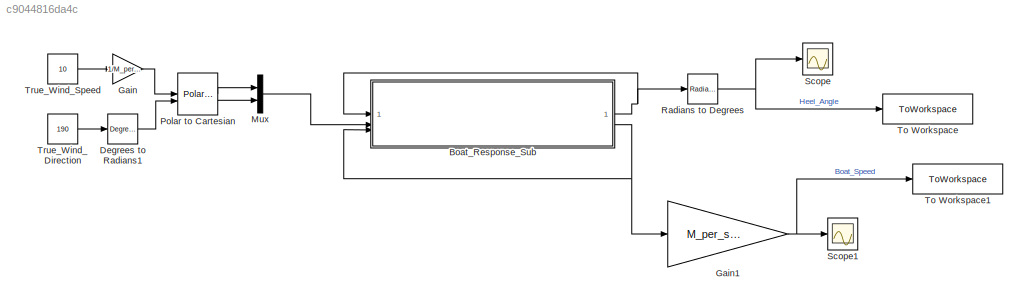
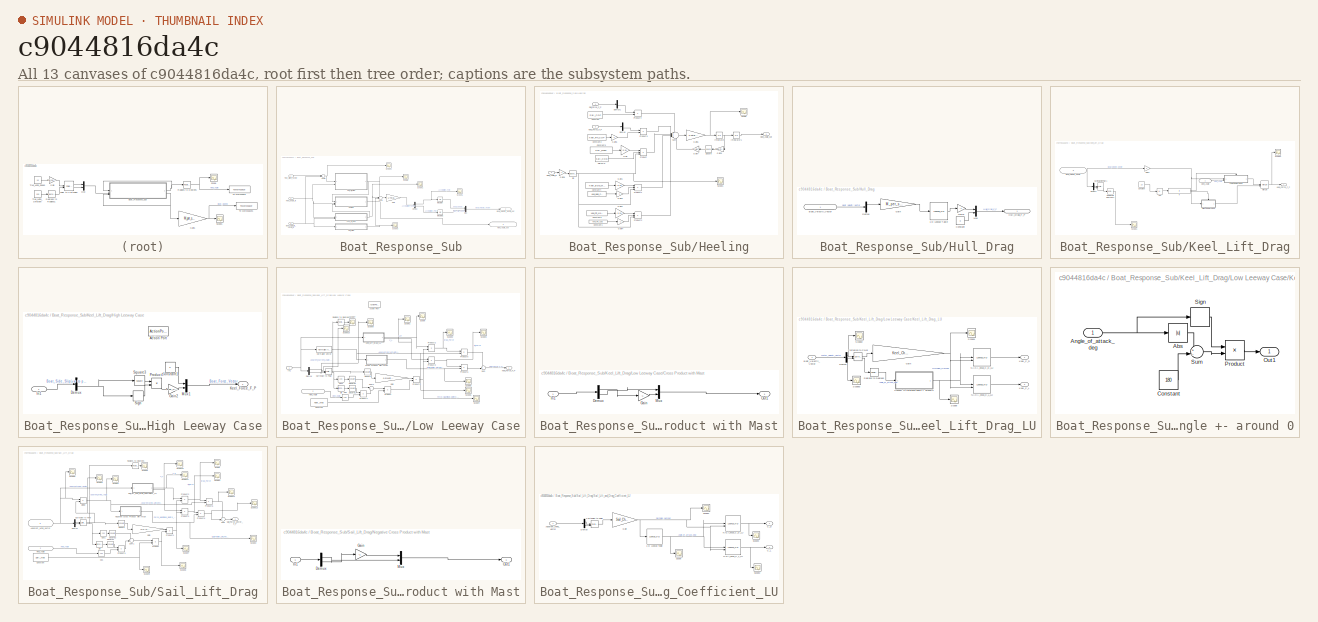
[diagram: thumbnail index - all 13 canvases of the model, root first then tree order]
MODEL slx_c9044816da4c
KIND model
CONFIG AbsTol = auto
CONFIG EnableMultiTasking = off
CONFIG FixedStep = auto
CONFIG MaxStep = auto
CONFIG MinStep = auto
CONFIG RelTol = 0.1
CONFIG SampleTimeConstraint = Unconstrained
CONFIG SolverName = VariableStepAuto
CONFIG StartTime = 0.0
CONFIG StopTime = 30
WORKSPACE source: mxarray member
WORKSPACE Air_Kinematic_Viscosity = 1.48e-05
WORKSPACE Air_density = 1.225
WORKSPACE Angle_Breakpoints = [-10.5 -10.25 -10 -9.75 -9.5 -9.25 -9 -8.75 -8.5 -8.25 -8 -7.75 ... (85 elements, 1x85)]
WORKSPACE Boat_Slosh_Damping = 1500
WORKSPACE Keel_Area = 1
WORKSPACE Keel_Bulb_COG = 1.3
WORKSPACE Keel_Bulb_Mass = 70
WORKSPACE Keel_Chord = 0.7
WORKSPACE Keel_Fin_COG = 0.8
WORKSPACE Keel_Fin_COP = 0.5
WORKSPACE Keel_Fin_Mass = 15
WORKSPACE M_per_s_to_knots = 1.944
WORKSPACE NACA_0018_Drag_LU = [0.10841 0.10247 0.08947 0.06466 0.05594 0.05095 0.05074 0.04743 0.04673 0.04411 0.04386 0.04172 ... (425 elements, 85x5)]
WORKSPACE NACA_0018_Lift_LU = [-0.4876 -0.5001 -0.5715 -0.7409 -0.8387 -0.8938 -0.8627 -0.8928 -0.8721 -0.8918 -0.8647 -0.8747 ... (425 elements, 85x5)]
WORKSPACE Resistance_Curve = [0 0.03 0.11 0.23 0.39 0.58 0.85 1.14 1.49 1.88 2.53 2.87 ... (41 elements, 41x1)]
WORKSPACE Resistance_Curve_Velocity_BreakPoints = [0 0.125 0.25 0.375 0.5 0.625 0.75 0.875 1 1.125 1.25 1.375 ... (41 elements, 41x1)]
WORKSPACE Reynolds_Breakpoints = [50000 100000 200000 500000 1000000]
WORKSPACE Sail_Area = 2
WORKSPACE Sail_Best_Angles = [5.75 6.75 7 9.25 10]
WORKSPACE Sail_COG = 1.35
WORKSPACE Sail_COP = 1.5
WORKSPACE Sail_Chord = 1.3
WORKSPACE Sail_Mass = 32
WORKSPACE Sig: Simulink.Signal (value not decoded)
WORKSPACE Sig1: Simulink.Signal (value not decoded)
WORKSPACE Total_MMOI = 200
WORKSPACE Total_Mass = 220
WORKSPACE Water_Density = 997
WORKSPACE Water_Kinematic_Viscosity = 1.3e-06
BLOCK [SubSystem] Boat_Response_Sub
BLOCK [Outport] Boat_Response_Sub/Boat_Velocity_Vector_out
  Port = 2
BLOCK [Inport] Boat_Response_Sub/Boat_velocity_vector_in
  Port = 3
BLOCK [Demux] Boat_Response_Sub/Demux
  Outputs = 2
BLOCK [Gain] Boat_Response_Sub/Gain
  Gain = 1/Total_Mass
BLOCK [Outport] Boat_Response_Sub/Heel_Angle_out
  IconDisplay = Signal name
BLOCK [Inport] Boat_Response_Sub/Heel_angle_in
BLOCK [SubSystem] Boat_Response_Sub/Heeling
BLOCK [Constant] Boat_Response_Sub/Heeling/ 
  Value = Keel_Bulb_COG
BLOCK [Constant] Boat_Response_Sub/Heeling/Constant
  Value = Sail_COP
BLOCK [Constant] Boat_Response_Sub/Heeling/Constant1
  Value = Keel_Fin_COG
BLOCK [Constant] Boat_Response_Sub/Heeling/Constant2
  Value = Keel_Fin_COP
BLOCK [Constant] Boat_Response_Sub/Heeling/Constant3
  Value = Sail_Mass
BLOCK [Constant] Boat_Response_Sub/Heeling/Constant4
  Value = Keel_Bulb_Mass
BLOCK [Constant] Boat_Response_Sub/Heeling/Constant5
  Value = Keel_Fin_Mass
BLOCK [Demux] Boat_Response_Sub/Heeling/Demux
  Outputs = 2
BLOCK [Demux] Boat_Response_Sub/Heeling/Demux1
  Outputs = 2
BLOCK [Gain] Boat_Response_Sub/Heeling/Gain
  Gain = -9.81
BLOCK [Gain] Boat_Response_Sub/Heeling/Gain1
  Gain = -9.81
BLOCK [Gain] Boat_Response_Sub/Heeling/Gain2
  Gain = -9.81
BLOCK [Gain] Boat_Response_Sub/Heeling/Gain3
  Gain = -1
BLOCK [Gain] Boat_Response_Sub/Heeling/Gain4
  Gain = -1
BLOCK [Gain] Boat_Response_Sub/Heeling/Gain5
  Gain = -1
BLOCK [Gain] Boat_Response_Sub/Heeling/Gain6
  Gain = 1/Total_MMOI
BLOCK [Gain] Boat_Response_Sub/Heeling/Gain7
  Gain = 0.5*Water_Density*Keel_Area
BLOCK [Gain] Boat_Response_Sub/Heeling/Gain8
  Gain = -1
BLOCK [Gain] Boat_Response_Sub/Heeling/Gain9
  Gain = Keel_Fin_COP
BLOCK [Inport] Boat_Response_Sub/Heeling/Heel_Angle_in
  Port = 2
BLOCK [Outport] Boat_Response_Sub/Heeling/Heel_Angle_out
BLOCK [Integrator] Boat_Response_Sub/Heeling/Integrator
BLOCK [Integrator] Boat_Response_Sub/Heeling/Integrator1
BLOCK [Inport] Boat_Response_Sub/Heeling/Keel_Force_F_P
  Port = 3
BLOCK [Product] Boat_Response_Sub/Heeling/Product
  Inputs = 3
BLOCK [Product] Boat_Response_Sub/Heeling/Product1
  Inputs = 3
BLOCK [Product] Boat_Response_Sub/Heeling/Product2
  Inputs = 3
BLOCK [Product] Boat_Response_Sub/Heeling/Product3
BLOCK [Product] Boat_Response_Sub/Heeling/Product4
BLOCK [Constant] Boat_Response_Sub/Heeling/Sail COG
  Value = Sail_COG
BLOCK [Inport] Boat_Response_Sub/Heeling/Sail_Force_F_P
BLOCK [Scope] Boat_Response_Sub/Heeling/Scope
  Floating = off
  NumInputPorts = 1
  ScopeSpecificationString = Simulink.scopes.TimeScopeBlockCfg('CurrentConfiguration', extmgr.ConfigurationSet(extmgr.Configuration('Core','General UI',true),extmgr.Configuration('Core','Source UI',true),extmgr.Configuration('Sources','WiredSimulink',true,'DataLoggingVariableName','ScopeData4'),extmgr.Configuration('Visuals','Time Domain',true,'SerializedDisplays',{struct('MinYLimReal','-20.76631','MaxYLimReal','9.35641','YLa...<+1368ch>
BLOCK [Scope] Boat_Response_Sub/Heeling/Scope1
  Floating = off
  NumInputPorts = 1
  ScopeSpecificationString = Simulink.scopes.TimeScopeBlockCfg('CurrentConfiguration', extmgr.ConfigurationSet(extmgr.Configuration('Core','General UI',true),extmgr.Configuration('Core','Source UI',true),extmgr.Configuration('Sources','WiredSimulink',true,'DataLoggingVariableName','ScopeData5'),extmgr.Configuration('Visuals','Time Domain',true,'SerializedDisplays',{struct('MinYLimReal','-1.18437','MaxYLimReal','1.11816','YLab...<+1397ch>
BLOCK [Trigonometry] Boat_Response_Sub/Heeling/Sin
  NameLocation = left
BLOCK [Math] Boat_Response_Sub/Heeling/Square
  Operator = square
BLOCK [Sum] Boat_Response_Sub/Heeling/Sum
  Inputs = +++++-
BLOCK [SubSystem] Boat_Response_Sub/Hull_Drag
BLOCK [Lookup_n-D] Boat_Response_Sub/Hull_Drag/1-D Lookup Table
  BreakpointsForDimension1 = Resistance_Curve_Velocity_BreakPoints
  ExtrapMethod = Clip
  InputPortMap = u0
  InternalRulePriority = Speed
  NumberOfTableDimensions = 1
  RndMeth = Simplest
  Table = Resistance_Curve
  UseLastTableValue = on
BLOCK [Inport] Boat_Response_Sub/Hull_Drag/Boat_Velocity_Vector
  IconDisplay = Signal name
BLOCK [Constant] Boat_Response_Sub/Hull_Drag/Constant
  Value = 0
BLOCK [Demux] Boat_Response_Sub/Hull_Drag/Demux
  Outputs = 2
BLOCK [Gain] Boat_Response_Sub/Hull_Drag/Gain
  Gain = M_per_s_to_knots
BLOCK [Gain] Boat_Response_Sub/Hull_Drag/Gain1
  Gain = -1
BLOCK [Outport] Boat_Response_Sub/Hull_Drag/Hull_Drag_F_P
  IconDisplay = Signal name
BLOCK [Mux] Boat_Response_Sub/Hull_Drag/Mux
  DisplayOption = bar
  Inputs = 2
BLOCK [Integrator] Boat_Response_Sub/Integrator
BLOCK [Integrator] Boat_Response_Sub/Integrator1
BLOCK [SubSystem] Boat_Response_Sub/Keel_Lift_Drag
BLOCK [Abs] Boat_Response_Sub/Keel_Lift_Drag/Abs
  SaturateOnIntegerOverflow = off
BLOCK [Inport] Boat_Response_Sub/Keel_Lift_Drag/Boat_Velocity_Vector
  IconDisplay = Signal name
  Port = 2
BLOCK [Reference] Boat_Response_Sub/Keel_Lift_Drag/Cartesian to Polar1  REF=simulink_extras/Transformations/Cartesian to
Polar
  SourceBlock = simulink_extras/Transformations/Cartesian to\nPolar
  SourceType = Cart2Polar
BLOCK [Constant] Boat_Response_Sub/Keel_Lift_Drag/Constant
  Value = 10
BLOCK [Demux] Boat_Response_Sub/Keel_Lift_Drag/Demux1
  Outputs = 2
BLOCK [Gain] Boat_Response_Sub/Keel_Lift_Drag/Gain1
  Gain = -1
BLOCK [Inport] Boat_Response_Sub/Keel_Lift_Drag/Heel_Angle
  IconDisplay = Signal name
BLOCK [SubSystem] Boat_Response_Sub/Keel_Lift_Drag/High Leeway Case
  TreatAsAtomicUnit = on
BLOCK [ActionPort] Boat_Response_Sub/Keel_Lift_Drag/High Leeway Case/Action Port
  ActionPortLabel = else
BLOCK [Constant] Boat_Response_Sub/Keel_Lift_Drag/High Leeway Case/Constant1
  Value = 0
BLOCK [Demux] Boat_Response_Sub/Keel_Lift_Drag/High Leeway Case/Demux
  Outputs = 2
BLOCK [Gain] Boat_Response_Sub/Keel_Lift_Drag/High Leeway Case/Gain2
  Gain = Boat_Slosh_Damping
BLOCK [Inport] Boat_Response_Sub/Keel_Lift_Drag/High Leeway Case/In1
BLOCK [Outport] Boat_Response_Sub/Keel_Lift_Drag/High Leeway Case/Keel_Force_F_P
BLOCK [Mux] Boat_Response_Sub/Keel_Lift_Drag/High Leeway Case/Mux1
  DisplayOption = bar
  Inputs = 2
BLOCK [Product] Boat_Response_Sub/Keel_Lift_Drag/High Leeway Case/Product7
BLOCK [Signum] Boat_Response_Sub/Keel_Lift_Drag/High Leeway Case/Sign
BLOCK [Math] Boat_Response_Sub/Keel_Lift_Drag/High Leeway Case/Square3
  Operator = square
BLOCK [If] Boat_Response_Sub/Keel_Lift_Drag/If
  IfExpression = u1< 5
BLOCK [Outport] Boat_Response_Sub/Keel_Lift_Drag/Keel_Force_F_P
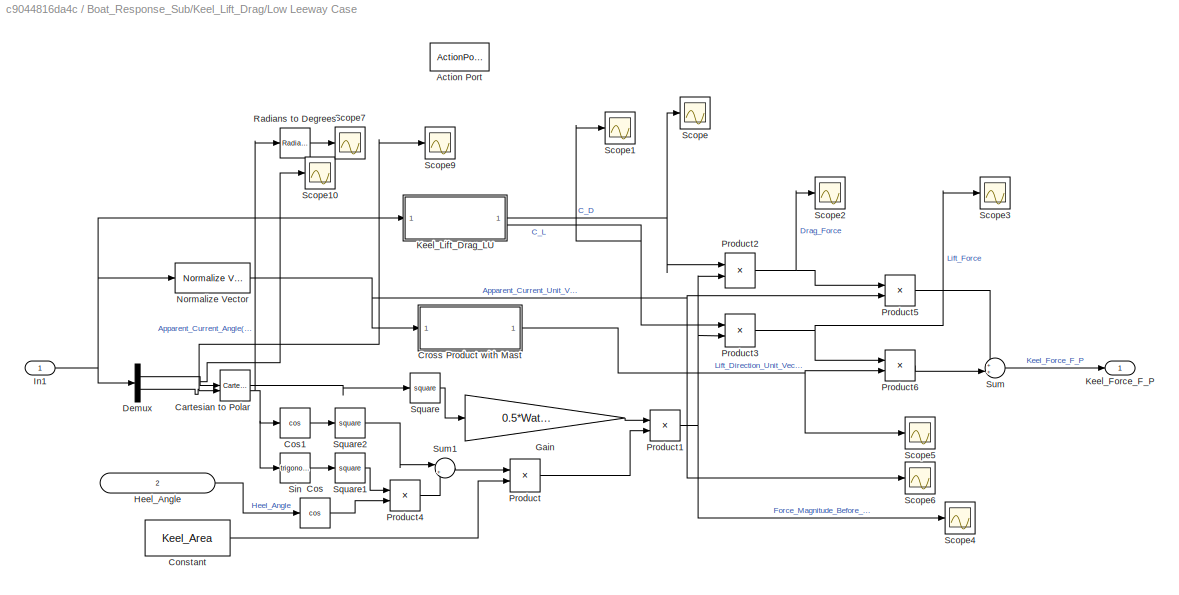
BLOCK [SubSystem] Boat_Response_Sub/Keel_Lift_Drag/Low Leeway Case
  Commented = on
  TreatAsAtomicUnit = on
BLOCK [ActionPort] Boat_Response_Sub/Keel_Lift_Drag/Low Leeway Case/Action Port
  ActionPortLabel = if(u1< 5)
BLOCK [Reference] Boat_Response_Sub/Keel_Lift_Drag/Low Leeway Case/Cartesian to Polar  REF=simulink_extras/Transformations/Cartesian to
Polar
  SourceBlock = simulink_extras/Transformations/Cartesian to\nPolar
  SourceType = Cart2Polar
BLOCK [Constant] Boat_Response_Sub/Keel_Lift_Drag/Low Leeway Case/Constant
  Value = Keel_Area
BLOCK [Trigonometry] Boat_Response_Sub/Keel_Lift_Drag/Low Leeway Case/Cos
  Operator = cos
BLOCK [Trigonometry] Boat_Response_Sub/Keel_Lift_Drag/Low Leeway Case/Cos1
  Operator = cos
BLOCK [SubSystem] Boat_Response_Sub/Keel_Lift_Drag/Low Leeway Case/Cross Product with Mast
BLOCK [Demux] Boat_Response_Sub/Keel_Lift_Drag/Low Leeway Case/Cross Product with Mast/Demux
  Outputs = 2
BLOCK [Gain] Boat_Response_Sub/Keel_Lift_Drag/Low Leeway Case/Cross Product with Mast/Gain
  Gain = -1
BLOCK [Inport] Boat_Response_Sub/Keel_Lift_Drag/Low Leeway Case/Cross Product with Mast/In1
BLOCK [Mux] Boat_Response_Sub/Keel_Lift_Drag/Low Leeway Case/Cross Product with Mast/Mux
  DisplayOption = bar
  Inputs = 2
BLOCK [Outport] Boat_Response_Sub/Keel_Lift_Drag/Low Leeway Case/Cross Product with Mast/Out1
BLOCK [Demux] Boat_Response_Sub/Keel_Lift_Drag/Low Leeway Case/Demux
  Outputs = 2
BLOCK [Gain] Boat_Response_Sub/Keel_Lift_Drag/Low Leeway Case/Gain
  Gain = 0.5*Water_Density
BLOCK [Inport] Boat_Response_Sub/Keel_Lift_Drag/Low Leeway Case/Heel_Angle
  IconDisplay = Signal name
  Port = 2
BLOCK [Inport] Boat_Response_Sub/Keel_Lift_Drag/Low Leeway Case/In1
BLOCK [Outport] Boat_Response_Sub/Keel_Lift_Drag/Low Leeway Case/Keel_Force_F_P
BLOCK [SubSystem] Boat_Response_Sub/Keel_Lift_Drag/Low Leeway Case/Keel_Lift_Drag_LU
BLOCK [Inport] Boat_Response_Sub/Keel_Lift_Drag/Low Leeway Case/Keel_Lift_Drag_LU/Boat_Velocity_Vector
BLOCK [Reference] Boat_Response_Sub/Keel_Lift_Drag/Low Leeway Case/Keel_Lift_Drag_LU/Cartesian to Polar  REF=simulink_extras/Transformations/Cartesian to
Polar
  SourceBlock = simulink_extras/Transformations/Cartesian to\nPolar
  SourceType = Cart2Polar
BLOCK [SubSystem] Boat_Response_Sub/Keel_Lift_Drag/Low Leeway Case/Keel_Lift_Drag_LU/Convert to reference angle +- around 0
BLOCK [Abs] Boat_Response_Sub/Keel_Lift_Drag/Low Leeway Case/Keel_Lift_Drag_LU/Convert to reference angle +- around 0/Abs
  SaturateOnIntegerOverflow = off
BLOCK [Inport] Boat_Response_Sub/Keel_Lift_Drag/Low Leeway Case/Keel_Lift_Drag_LU/Convert to reference angle +- around 0/Angle_of_attack_deg
BLOCK [Constant] Boat_Response_Sub/Keel_Lift_Drag/Low Leeway Case/Keel_Lift_Drag_LU/Convert to reference angle +- around 0/Constant
  Value = 180
BLOCK [Outport] Boat_Response_Sub/Keel_Lift_Drag/Low Leeway Case/Keel_Lift_Drag_LU/Convert to reference angle +- around 0/Out1
BLOCK [Product] Boat_Response_Sub/Keel_Lift_Drag/Low Leeway Case/Keel_Lift_Drag_LU/Convert to reference angle +- around 0/Product
BLOCK [Signum] Boat_Response_Sub/Keel_Lift_Drag/Low Leeway Case/Keel_Lift_Drag_LU/Convert to reference angle +- around 0/Sign
BLOCK [Sum] Boat_Response_Sub/Keel_Lift_Drag/Low Leeway Case/Keel_Lift_Drag_LU/Convert to reference angle +- around 0/Sum
  Inputs = +-|
BLOCK [Demux] Boat_Response_Sub/Keel_Lift_Drag/Low Leeway Case/Keel_Lift_Drag_LU/Demux
  Outputs = 2
BLOCK [Gain] Boat_Response_Sub/Keel_Lift_Drag/Low Leeway Case/Keel_Lift_Drag_LU/Gain
  Gain = Keel_Chord/Water_Kinematic_Viscosity
BLOCK [Outport] Boat_Response_Sub/Keel_Lift_Drag/Low Leeway Case/Keel_Lift_Drag_LU/Keel_C_D
BLOCK [Outport] Boat_Response_Sub/Keel_Lift_Drag/Low Leeway Case/Keel_Lift_Drag_LU/Keel_C_L
  Port = 2
BLOCK [Lookup_n-D] Boat_Response_Sub/Keel_Lift_Drag/Low Leeway Case/Keel_Lift_Drag_LU/NACA_0018_C_D_LU
  BreakpointsForDimension1 = Angle_Breakpoints
  BreakpointsForDimension1FirstPoint = 10
  BreakpointsForDimension1Spacing = 12
  BreakpointsForDimension2 = Reynolds_Breakpoints
  BreakpointsForDimension2FirstPoint = 10
  BreakpointsForDimension2Spacing = 12
  DiagnosticForOutOfRangeInput = Warning
  IndexSearchMethod = Linear search
  InputPortMap = u0,u1
  InternalRulePriority = Speed
  InterpMethod = Flat
  LookupTableObject = ''
  RndMeth = Simplest
  Table = NACA_0018_Drag_LU
BLOCK [Lookup_n-D] Boat_Response_Sub/Keel_Lift_Drag/Low Leeway Case/Keel_Lift_Drag_LU/NACA_0018_C_L_LU
  BreakpointsForDimension1 = Angle_Breakpoints
  BreakpointsForDimension1FirstPoint = 10
  BreakpointsForDimension1Spacing = 12
  BreakpointsForDimension2 = Reynolds_Breakpoints
  BreakpointsForDimension2FirstPoint = 10
  BreakpointsForDimension2Spacing = 12
  DiagnosticForOutOfRangeInput = Warning
  IndexSearchMethod = Linear search
  InputPortMap = u0,u1
  InternalRulePriority = Speed
  InterpMethod = Flat
  LookupTableObject = ''
  RndMeth = Simplest
  Table = NACA_0018_Lift_LU
BLOCK [Reference] Boat_Response_Sub/Keel_Lift_Drag/Low Leeway Case/Keel_Lift_Drag_LU/Radians to Degrees  REF=simulink_extras/Transformations/Radians
to Degrees
  SourceBlock = simulink_extras/Transformations/Radians\nto Degrees
  SourceType = RadiansToDegrees
BLOCK [Scope] Boat_Response_Sub/Keel_Lift_Drag/Low Leeway Case/Keel_Lift_Drag_LU/Scope
  Floating = off
  NumInputPorts = 1
  ScopeSpecificationString = Simulink.scopes.TimeScopeBlockCfg('CurrentConfiguration', extmgr.ConfigurationSet(extmgr.Configuration('Core','General UI',true),extmgr.Configuration('Core','Source UI',true),extmgr.Configuration('Sources','WiredSimulink',true,'DataLoggingVariableName','ScopeData18'),extmgr.Configuration('Visuals','Time Domain',true,'SerializedDisplays',{struct('MinYLimReal','-5.00000000000001','MaxYLimReal','-4.9...<+1472ch>
BLOCK [Scope] Boat_Response_Sub/Keel_Lift_Drag/Low Leeway Case/Keel_Lift_Drag_LU/Scope1
  Floating = off
  NumInputPorts = 1
  ScopeSpecificationString = Simulink.scopes.TimeScopeBlockCfg('CurrentConfiguration', extmgr.ConfigurationSet(extmgr.Configuration('Core','General UI',true),extmgr.Configuration('Core','Source UI',true),extmgr.Configuration('Sources','WiredSimulink',true,'DataLoggingVariableName','ScopeData32'),extmgr.Configuration('Visuals','Time Domain',true,'SerializedDisplays',{struct('MinYLimReal','110612.96748','MaxYLimReal','110612.96...<+1413ch>
BLOCK [Scope] Boat_Response_Sub/Keel_Lift_Drag/Low Leeway Case/Keel_Lift_Drag_LU/Scope2
  Floating = off
  NumInputPorts = 1
  ScopeSpecificationString = Simulink.scopes.TimeScopeBlockCfg('CurrentConfiguration', extmgr.ConfigurationSet(extmgr.Configuration('Core','General UI',true),extmgr.Configuration('Core','Source UI',true),extmgr.Configuration('Sources','WiredSimulink',true,'DataLoggingVariableName','ScopeData35'),extmgr.Configuration('Visuals','Time Domain',true,'SerializedDisplays',{struct('MinYLimReal','-0.47828','MaxYLimReal','0.05314','YLa...<+1367ch>
BLOCK [Scope] Boat_Response_Sub/Keel_Lift_Drag/Low Leeway Case/Keel_Lift_Drag_LU/Scope3
  Floating = off
  NumInputPorts = 1
  ScopeSpecificationString = Simulink.scopes.TimeScopeBlockCfg('CurrentConfiguration', extmgr.ConfigurationSet(extmgr.Configuration('Core','General UI',true),extmgr.Configuration('Core','Source UI',true),extmgr.Configuration('Sources','WiredSimulink',true,'DataLoggingVariableName','ScopeData36'),extmgr.Configuration('Visuals','Time Domain',true,'SerializedDisplays',{struct('MinYLimReal','0.01790388848','MaxYLimReal','0.017903...<+1446ch>
BLOCK [Reference] Boat_Response_Sub/Keel_Lift_Drag/Low Leeway Case/Normalize Vector  REF=vrlib/Utilities/Normalize Vector
  SourceBlock = vrlib/Utilities/Normalize Vector
  SourceType = Normalize Vector
BLOCK [Product] Boat_Response_Sub/Keel_Lift_Drag/Low Leeway Case/Product
BLOCK [Product] Boat_Response_Sub/Keel_Lift_Drag/Low Leeway Case/Product1
BLOCK [Product] Boat_Response_Sub/Keel_Lift_Drag/Low Leeway Case/Product2
BLOCK [Product] Boat_Response_Sub/Keel_Lift_Drag/Low Leeway Case/Product3
BLOCK [Product] Boat_Response_Sub/Keel_Lift_Drag/Low Leeway Case/Product4
BLOCK [Product] Boat_Response_Sub/Keel_Lift_Drag/Low Leeway Case/Product5
BLOCK [Product] Boat_Response_Sub/Keel_Lift_Drag/Low Leeway Case/Product6
BLOCK [Reference] Boat_Response_Sub/Keel_Lift_Drag/Low Leeway Case/Radians to Degrees  REF=simulink_extras/Transformations/Radians
to Degrees
  SourceBlock = simulink_extras/Transformations/Radians\nto Degrees
  SourceType = RadiansToDegrees
BLOCK [Scope] Boat_Response_Sub/Keel_Lift_Drag/Low Leeway Case/Scope
  Floating = off
  NumInputPorts = 1
  ScopeSpecificationString = Simulink.scopes.TimeScopeBlockCfg('CurrentConfiguration', extmgr.ConfigurationSet(extmgr.Configuration('Core','General UI',true),extmgr.Configuration('Core','Source UI',true),extmgr.Configuration('Sources','WiredSimulink',true,'DataLoggingVariableName','ScopeData15'),extmgr.Configuration('Visuals','Time Domain',true,'SerializedDisplays',{struct('MinYLimReal','0.02038','MaxYLimReal','0.0436','YLabe...<+1357ch>
BLOCK [Scope] Boat_Response_Sub/Keel_Lift_Drag/Low Leeway Case/Scope1
  Floating = off
  NumInputPorts = 1
  ScopeSpecificationString = Simulink.scopes.TimeScopeBlockCfg('CurrentConfiguration', extmgr.ConfigurationSet(extmgr.Configuration('Core','General UI',true),extmgr.Configuration('Core','Source UI',true),extmgr.Configuration('Sources','WiredSimulink',true,'DataLoggingVariableName','ScopeData29'),extmgr.Configuration('Visuals','Time Domain',true,'SerializedDisplays',{struct('MinYLimReal','-0.87165','MaxYLimReal','0.09685','YLa...<+1465ch>
BLOCK [Scope] Boat_Response_Sub/Keel_Lift_Drag/Low Leeway Case/Scope10
  Floating = off
  NumInputPorts = 1
  ScopeSpecificationString = Simulink.scopes.TimeScopeBlockCfg('CurrentConfiguration', extmgr.ConfigurationSet(extmgr.Configuration('Core','General UI',true),extmgr.Configuration('Core','Source UI',true),extmgr.Configuration('Sources','WiredSimulink',true,'DataLoggingVariableName','ScopeData37'),extmgr.Configuration('Visuals','Time Domain',true,'SerializedDisplays',{struct('MinYLimReal','-0.47828','MaxYLimReal','0.05314','YLa...<+1367ch>
BLOCK [Scope] Boat_Response_Sub/Keel_Lift_Drag/Low Leeway Case/Scope2
  Floating = off
  NumInputPorts = 1
  ScopeSpecificationString = Simulink.scopes.TimeScopeBlockCfg('CurrentConfiguration', extmgr.ConfigurationSet(extmgr.Configuration('Core','General UI',true),extmgr.Configuration('Core','Source UI',true),extmgr.Configuration('Sources','WiredSimulink',true,'DataLoggingVariableName','ScopeData38'),extmgr.Configuration('Visuals','Time Domain',true,'SerializedDisplays',{struct('MinYLimReal','-0.39887','MaxYLimReal','3.5898','YLab...<+1366ch>
BLOCK [Scope] Boat_Response_Sub/Keel_Lift_Drag/Low Leeway Case/Scope3
  Floating = off
  NumInputPorts = 1
  ScopeSpecificationString = Simulink.scopes.TimeScopeBlockCfg('CurrentConfiguration', extmgr.ConfigurationSet(extmgr.Configuration('Core','General UI',true),extmgr.Configuration('Core','Source UI',true),extmgr.Configuration('Sources','WiredSimulink',true,'DataLoggingVariableName','ScopeData39'),extmgr.Configuration('Visuals','Time Domain',true,'SerializedDisplays',{struct('MinYLimReal','-153.48442','MaxYLimReal','17.05382','...<+1382ch>
BLOCK [Scope] Boat_Response_Sub/Keel_Lift_Drag/Low Leeway Case/Scope4
  Floating = off
  NumInputPorts = 1
  ScopeSpecificationString = Simulink.scopes.TimeScopeBlockCfg('CurrentConfiguration', extmgr.ConfigurationSet(extmgr.Configuration('Core','General UI',true),extmgr.Configuration('Core','Source UI',true),extmgr.Configuration('Sources','WiredSimulink',true,'DataLoggingVariableName','ScopeData40'),extmgr.Configuration('Visuals','Time Domain',true,'SerializedDisplays',{struct('MinYLimReal','21.03622825','MaxYLimReal','21.0362287...<+1458ch>
BLOCK [Scope] Boat_Response_Sub/Keel_Lift_Drag/Low Leeway Case/Scope5
  Floating = off
  NumInputPorts = 1
  ScopeSpecificationString = Simulink.scopes.TimeScopeBlockCfg('CurrentConfiguration', extmgr.ConfigurationSet(extmgr.Configuration('Core','General UI',true),extmgr.Configuration('Core','Source UI',true),extmgr.Configuration('Sources','WiredSimulink',true,'DataLoggingVariableName','ScopeData41'),extmgr.Configuration('Visuals','Time Domain',true,'SerializedDisplays',{struct('MinYLimReal','-0.12499','MaxYLimReal','1.12487','YLa...<+1419ch>
BLOCK [Scope] Boat_Response_Sub/Keel_Lift_Drag/Low Leeway Case/Scope6
  Floating = off
  NumInputPorts = 1
  ScopeSpecificationString = Simulink.scopes.TimeScopeBlockCfg('CurrentConfiguration', extmgr.ConfigurationSet(extmgr.Configuration('Core','General UI',true),extmgr.Configuration('Core','Source UI',true),extmgr.Configuration('Sources','WiredSimulink',true,'DataLoggingVariableName','ScopeData42'),extmgr.Configuration('Visuals','Time Domain',true,'SerializedDisplays',{struct('MinYLimReal','-1.20622','MaxYLimReal','0.85713','YLa...<+1423ch>
BLOCK [Scope] Boat_Response_Sub/Keel_Lift_Drag/Low Leeway Case/Scope7
  Floating = off
  NumInputPorts = 1
  ScopeSpecificationString = Simulink.scopes.TimeScopeBlockCfg('CurrentConfiguration', extmgr.ConfigurationSet(extmgr.Configuration('Core','General UI',true),extmgr.Configuration('Core','Source UI',true),extmgr.Configuration('Sources','WiredSimulink',true,'DataLoggingVariableName','ScopeData43'),extmgr.Configuration('Visuals','Time Domain',true,'SerializedDisplays',{struct('MinYLimReal','-225.00000','MaxYLimReal','225.00000',...<+1436ch>
BLOCK [Scope] Boat_Response_Sub/Keel_Lift_Drag/Low Leeway Case/Scope9
  Floating = off
  NumInputPorts = 1
  ScopeSpecificationString = Simulink.scopes.TimeScopeBlockCfg('CurrentConfiguration', extmgr.ConfigurationSet(extmgr.Configuration('Core','General UI',true),extmgr.Configuration('Core','Source UI',true),extmgr.Configuration('Sources','WiredSimulink',true,'DataLoggingVariableName','ScopeData44'),extmgr.Configuration('Visuals','Time Domain',true,'SerializedDisplays',{struct('MinYLimReal','-0.04021','MaxYLimReal','0.36192','YLa...<+1396ch>
BLOCK [Trigonometry] Boat_Response_Sub/Keel_Lift_Drag/Low Leeway Case/Sin
BLOCK [Math] Boat_Response_Sub/Keel_Lift_Drag/Low Leeway Case/Square
  Operator = square
BLOCK [Math] Boat_Response_Sub/Keel_Lift_Drag/Low Leeway Case/Square1
  Operator = square
BLOCK [Math] Boat_Response_Sub/Keel_Lift_Drag/Low Leeway Case/Square2
  Operator = square
BLOCK [Sum] Boat_Response_Sub/Keel_Lift_Drag/Low Leeway Case/Sum
  Inputs = ++|
BLOCK [Sum] Boat_Response_Sub/Keel_Lift_Drag/Low Leeway Case/Sum1
  Inputs = |++
BLOCK [Merge] Boat_Response_Sub/Keel_Lift_Drag/Merge
BLOCK [Reference] Boat_Response_Sub/Keel_Lift_Drag/Radians to Degrees1  REF=simulink_extras/Transformations/Radians
to Degrees
  SourceBlock = simulink_extras/Transformations/Radians\nto Degrees
  SourceType = RadiansToDegrees
BLOCK [Scope] Boat_Response_Sub/Keel_Lift_Drag/Scope1
  Floating = off
  NumInputPorts = 1
  ScopeSpecificationString = Simulink.scopes.TimeScopeBlockCfg('CurrentConfiguration', extmgr.ConfigurationSet(extmgr.Configuration('Core','General UI',true),extmgr.Configuration('Core','Source UI',true),extmgr.Configuration('Sources','WiredSimulink',true,'DataLoggingVariableName','ScopeData2'),extmgr.Configuration('Visuals','Time Domain',true,'SerializedDisplays',{struct('MinYLimReal','-11.14115','MaxYLimReal','100.27033','Y...<+1388ch>
BLOCK [Scope] Boat_Response_Sub/Keel_Lift_Drag/Scope2
  Floating = off
  NumInputPorts = 1
  ScopeSpecificationString = Simulink.scopes.TimeScopeBlockCfg('CurrentConfiguration', extmgr.ConfigurationSet(extmgr.Configuration('Core','General UI',true),extmgr.Configuration('Core','Source UI',true),extmgr.Configuration('Sources','WiredSimulink',true,'DataLoggingVariableName','ScopeData10'),extmgr.Configuration('Visuals','Time Domain',true,'SerializedDisplays',{struct('MinYLimReal','-1.00000','MaxYLimReal','1.00000','YLa...<+1400ch>
BLOCK [Mux] Boat_Response_Sub/Mux
  DisplayOption = bar
  Inputs = 2
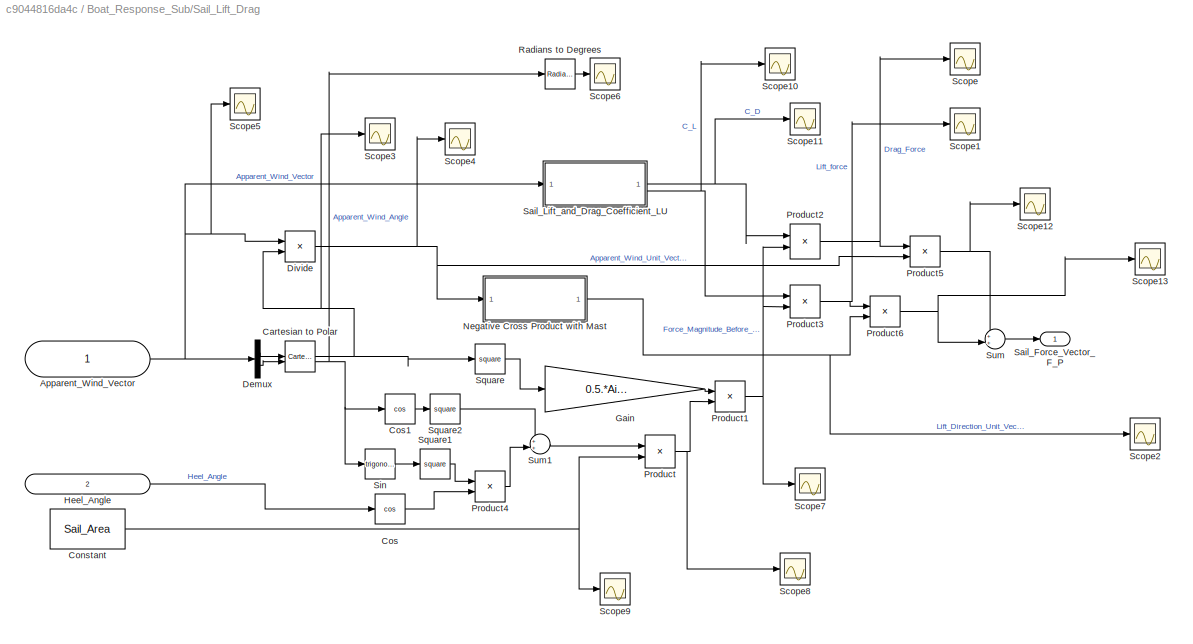
BLOCK [SubSystem] Boat_Response_Sub/Sail_Lift_Drag
BLOCK [Inport] Boat_Response_Sub/Sail_Lift_Drag/Apparent_Wind_Vector
  IconDisplay = Signal name
BLOCK [Reference] Boat_Response_Sub/Sail_Lift_Drag/Cartesian to Polar  REF=simulink_extras/Transformations/Cartesian to
Polar
  SourceBlock = simulink_extras/Transformations/Cartesian to\nPolar
  SourceType = Cart2Polar
BLOCK [Constant] Boat_Response_Sub/Sail_Lift_Drag/Constant
  Value = Sail_Area
BLOCK [Trigonometry] Boat_Response_Sub/Sail_Lift_Drag/Cos
  Operator = cos
BLOCK [Trigonometry] Boat_Response_Sub/Sail_Lift_Drag/Cos1
  Operator = cos
BLOCK [Demux] Boat_Response_Sub/Sail_Lift_Drag/Demux
  Outputs = 2
BLOCK [Product] Boat_Response_Sub/Sail_Lift_Drag/Divide
  Inputs = */
BLOCK [Gain] Boat_Response_Sub/Sail_Lift_Drag/Gain
  Gain = 0.5.*Air_density
BLOCK [Inport] Boat_Response_Sub/Sail_Lift_Drag/Heel_Angle
  IconDisplay = Signal name
  Port = 2
BLOCK [SubSystem] Boat_Response_Sub/Sail_Lift_Drag/Negative Cross Product with Mast
BLOCK [Demux] Boat_Response_Sub/Sail_Lift_Drag/Negative Cross Product with Mast/Demux
  Outputs = 2
BLOCK [Gain] Boat_Response_Sub/Sail_Lift_Drag/Negative Cross Product with Mast/Gain
  Gain = -1
BLOCK [Inport] Boat_Response_Sub/Sail_Lift_Drag/Negative Cross Product with Mast/In1
BLOCK [Mux] Boat_Response_Sub/Sail_Lift_Drag/Negative Cross Product with Mast/Mux
  DisplayOption = bar
  Inputs = 2
BLOCK [Outport] Boat_Response_Sub/Sail_Lift_Drag/Negative Cross Product with Mast/Out1
BLOCK [Product] Boat_Response_Sub/Sail_Lift_Drag/Product
BLOCK [Product] Boat_Response_Sub/Sail_Lift_Drag/Product1
BLOCK [Product] Boat_Response_Sub/Sail_Lift_Drag/Product2
BLOCK [Product] Boat_Response_Sub/Sail_Lift_Drag/Product3
BLOCK [Product] Boat_Response_Sub/Sail_Lift_Drag/Product4
BLOCK [Product] Boat_Response_Sub/Sail_Lift_Drag/Product5
BLOCK [Product] Boat_Response_Sub/Sail_Lift_Drag/Product6
BLOCK [Reference] Boat_Response_Sub/Sail_Lift_Drag/Radians to Degrees  REF=simulink_extras/Transformations/Radians
to Degrees
  SourceBlock = simulink_extras/Transformations/Radians\nto Degrees
  SourceType = RadiansToDegrees
BLOCK [Outport] Boat_Response_Sub/Sail_Lift_Drag/Sail_Force_Vector_F_P
BLOCK [SubSystem] Boat_Response_Sub/Sail_Lift_Drag/Sail_Lift_and_Drag_Coefficient_LU
BLOCK [Lookup_n-D] Boat_Response_Sub/Sail_Lift_Drag/Sail_Lift_and_Drag_Coefficient_LU/1-D Lookup Table
  BreakpointsForDimension1 = Reynolds_Breakpoints
  InputPortMap = u0
  InternalRulePriority = Speed
  InterpMethod = Nearest
  NumberOfTableDimensions = 1
  RndMeth = Simplest
  Table = Sail_Best_Angles
BLOCK [Inport] Boat_Response_Sub/Sail_Lift_Drag/Sail_Lift_and_Drag_Coefficient_LU/Apparent_Wind_Vector
BLOCK [Outport] Boat_Response_Sub/Sail_Lift_Drag/Sail_Lift_and_Drag_Coefficient_LU/C_D
BLOCK [Outport] Boat_Response_Sub/Sail_Lift_Drag/Sail_Lift_and_Drag_Coefficient_LU/C_L
  Port = 2
BLOCK [Reference] Boat_Response_Sub/Sail_Lift_Drag/Sail_Lift_and_Drag_Coefficient_LU/Cartesian to Polar  REF=simulink_extras/Transformations/Cartesian to
Polar
  SourceBlock = simulink_extras/Transformations/Cartesian to\nPolar
  SourceType = Cart2Polar
BLOCK [Demux] Boat_Response_Sub/Sail_Lift_Drag/Sail_Lift_and_Drag_Coefficient_LU/Demux
  Outputs = 2
BLOCK [Gain] Boat_Response_Sub/Sail_Lift_Drag/Sail_Lift_and_Drag_Coefficient_LU/Gain
  Gain = Sail_Chord/Air_Kinematic_Viscosity
BLOCK [Lookup_n-D] Boat_Response_Sub/Sail_Lift_Drag/Sail_Lift_and_Drag_Coefficient_LU/NACA_0018_C_D_LU
  BreakpointsForDimension1 = Angle_Breakpoints
  BreakpointsForDimension1FirstPoint = 10
  BreakpointsForDimension1Spacing = 12
  BreakpointsForDimension2 = Reynolds_Breakpoints
  BreakpointsForDimension2FirstPoint = 10
  BreakpointsForDimension2Spacing = 12
  DiagnosticForOutOfRangeInput = Warning
  IndexSearchMethod = Linear search
  InputPortMap = u0,u1
  InternalRulePriority = Speed
  InterpMethod = Nearest
  LookupTableObject = ''
  RndMeth = Simplest
  Table = NACA_0018_Drag_LU
BLOCK [Lookup_n-D] Boat_Response_Sub/Sail_Lift_Drag/Sail_Lift_and_Drag_Coefficient_LU/NACA_0018_C_L_LU
  BreakpointsForDimension1 = Angle_Breakpoints
  BreakpointsForDimension1FirstPoint = 10
  BreakpointsForDimension1Spacing = 12
  BreakpointsForDimension2 = Reynolds_Breakpoints
  BreakpointsForDimension2FirstPoint = 10
  BreakpointsForDimension2Spacing = 12
  DiagnosticForOutOfRangeInput = Warning
  InputPortMap = u0,u1
  InternalRulePriority = Speed
  InterpMethod = Nearest
  LookupTableObject = ''
  RndMeth = Simplest
  Table = NACA_0018_Lift_LU
BLOCK [Scope] Boat_Response_Sub/Sail_Lift_Drag/Sail_Lift_and_Drag_Coefficient_LU/Scope
  Floating = off
  NumInputPorts = 1
  ScopeSpecificationString = Simulink.scopes.TimeScopeBlockCfg('CurrentConfiguration', extmgr.ConfigurationSet(extmgr.Configuration('Core','General UI',true),extmgr.Configuration('Core','Source UI',true),extmgr.Configuration('Sources','WiredSimulink',true,'DataLoggingVariableName','ScopeData25'),extmgr.Configuration('Visuals','Time Domain',true,'SerializedDisplays',{struct('MinYLimReal','8.25','MaxYLimReal','10.25','YLabelRea...<+1357ch>
BLOCK [Scope] Boat_Response_Sub/Sail_Lift_Drag/Sail_Lift_and_Drag_Coefficient_LU/Scope1
  Floating = off
  NumInputPorts = 1
  ScopeSpecificationString = Simulink.scopes.TimeScopeBlockCfg('CurrentConfiguration', extmgr.ConfigurationSet(extmgr.Configuration('Core','General UI',true),extmgr.Configuration('Core','Source UI',true),extmgr.Configuration('Sources','WiredSimulink',true,'DataLoggingVariableName','ScopeData26'),extmgr.Configuration('Visuals','Time Domain',true,'SerializedDisplays',{struct('MinYLimReal','619390.91846','MaxYLimReal','684246.66...<+1413ch>
BLOCK [Scope] Boat_Response_Sub/Sail_Lift_Drag/Sail_Lift_and_Drag_Coefficient_LU/Scope2
  Floating = off
  NumInputPorts = 1
  ScopeSpecificationString = Simulink.scopes.TimeScopeBlockCfg('CurrentConfiguration', extmgr.ConfigurationSet(extmgr.Configuration('Core','General UI',true),extmgr.Configuration('Core','Source UI',true),extmgr.Configuration('Sources','WiredSimulink',true,'DataLoggingVariableName','ScopeData27'),extmgr.Configuration('Visuals','Time Domain',true,'SerializedDisplays',{struct('MinYLimReal','0.0737','MaxYLimReal','2.0737','YLabel...<+1366ch>
BLOCK [Scope] Boat_Response_Sub/Sail_Lift_Drag/Sail_Lift_and_Drag_Coefficient_LU/Scope3
  Floating = off
  NumInputPorts = 1
  ScopeSpecificationString = Simulink.scopes.TimeScopeBlockCfg('CurrentConfiguration', extmgr.ConfigurationSet(extmgr.Configuration('Core','General UI',true),extmgr.Configuration('Core','Source UI',true),extmgr.Configuration('Sources','WiredSimulink',true,'DataLoggingVariableName','ScopeData28'),extmgr.Configuration('Visuals','Time Domain',true),extmgr.Configuration('Tools','Plot Navigation',true),extmgr.Configuration('Tools'...<+41ch>
BLOCK [Scope] Boat_Response_Sub/Sail_Lift_Drag/Scope
  Floating = off
  NumInputPorts = 1
  ScopeSpecificationString = Simulink.scopes.TimeScopeBlockCfg('CurrentConfiguration', extmgr.ConfigurationSet(extmgr.Configuration('Core','General UI',true),extmgr.Configuration('Core','Source UI',true),extmgr.Configuration('Sources','WiredSimulink',true,'DataLoggingVariableName','ScopeData2'),extmgr.Configuration('Visuals','Time Domain',true,'SerializedDisplays',{struct('MinYLimReal','0.9931','MaxYLimReal','1.21218','YLabel...<+1398ch>
BLOCK [Scope] Boat_Response_Sub/Sail_Lift_Drag/Scope1
  Floating = off
  NumInputPorts = 1
  ScopeSpecificationString = Simulink.scopes.TimeScopeBlockCfg('CurrentConfiguration', extmgr.ConfigurationSet(extmgr.Configuration('Core','General UI',true),extmgr.Configuration('Core','Source UI',true),extmgr.Configuration('Sources','WiredSimulink',true,'DataLoggingVariableName','ScopeData3'),extmgr.Configuration('Visuals','Time Domain',true,'SerializedDisplays',{struct('MinYLimReal','65.33662','MaxYLimReal','79.74985','YLa...<+1410ch>
BLOCK [Scope] Boat_Response_Sub/Sail_Lift_Drag/Scope10
  Floating = off
  NumInputPorts = 1
  ScopeSpecificationString = Simulink.scopes.TimeScopeBlockCfg('CurrentConfiguration', extmgr.ConfigurationSet(extmgr.Configuration('Core','General UI',true),extmgr.Configuration('Core','Source UI',true),extmgr.Configuration('Sources','WiredSimulink',true,'DataLoggingVariableName','ScopeData23'),extmgr.Configuration('Visuals','Time Domain',true,'SerializedDisplays',{struct('MinYLimReal','0.0737','MaxYLimReal','2.0737','YLabel...<+1353ch>
BLOCK [Scope] Boat_Response_Sub/Sail_Lift_Drag/Scope11
  Floating = off
  NumInputPorts = 1
  ScopeSpecificationString = Simulink.scopes.TimeScopeBlockCfg('CurrentConfiguration', extmgr.ConfigurationSet(extmgr.Configuration('Core','General UI',true),extmgr.Configuration('Core','Source UI',true),extmgr.Configuration('Sources','WiredSimulink',true,'DataLoggingVariableName','ScopeData24'),extmgr.Configuration('Visuals','Time Domain',true,'SerializedDisplays',{struct('MinYLimReal','0.00632','MaxYLimReal','0.02632','YLab...<+1361ch>
BLOCK [Scope] Boat_Response_Sub/Sail_Lift_Drag/Scope12
  Floating = off
  NumInputPorts = 1
  ScopeSpecificationString = Simulink.scopes.TimeScopeBlockCfg('CurrentConfiguration', extmgr.ConfigurationSet(extmgr.Configuration('Core','General UI',true),extmgr.Configuration('Core','Source UI',true),extmgr.Configuration('Sources','WiredSimulink',true,'DataLoggingVariableName','ScopeData33'),extmgr.Configuration('Visuals','Time Domain',true,'SerializedDisplays',{struct('MinYLimReal','-1.33906','MaxYLimReal','0.14878','YLa...<+1383ch>
BLOCK [Scope] Boat_Response_Sub/Sail_Lift_Drag/Scope13
  Floating = off
  NumInputPorts = 1
  ScopeSpecificationString = Simulink.scopes.TimeScopeBlockCfg('CurrentConfiguration', extmgr.ConfigurationSet(extmgr.Configuration('Core','General UI',true),extmgr.Configuration('Core','Source UI',true),extmgr.Configuration('Sources','WiredSimulink',true,'DataLoggingVariableName','ScopeData34'),extmgr.Configuration('Visuals','Time Domain',true,'SerializedDisplays',{struct('MinYLimReal','-26.66155','MaxYLimReal','89.97187','Y...<+1389ch>
BLOCK [Scope] Boat_Response_Sub/Sail_Lift_Drag/Scope2
  Floating = off
  NumInputPorts = 1
  ScopeSpecificationString = Simulink.scopes.TimeScopeBlockCfg('CurrentConfiguration', extmgr.ConfigurationSet(extmgr.Configuration('Core','General UI',true),extmgr.Configuration('Core','Source UI',true),extmgr.Configuration('Sources','WiredSimulink',true,'DataLoggingVariableName','ScopeData4'),extmgr.Configuration('Visuals','Time Domain',true,'SerializedDisplays',{struct('MinYLimReal','-0.3595','MaxYLimReal','1.15106','YLabe...<+1487ch>
BLOCK [Scope] Boat_Response_Sub/Sail_Lift_Drag/Scope3
  Floating = off
  NumInputPorts = 1
  ScopeSpecificationString = Simulink.scopes.TimeScopeBlockCfg('CurrentConfiguration', extmgr.ConfigurationSet(extmgr.Configuration('Core','General UI',true),extmgr.Configuration('Core','Source UI',true),extmgr.Configuration('Sources','WiredSimulink',true,'DataLoggingVariableName','ScopeData5'),extmgr.Configuration('Visuals','Time Domain',true,'SerializedDisplays',{struct('MinYLimReal','7.05153','MaxYLimReal','7.78989','YLabe...<+1412ch>
BLOCK [Scope] Boat_Response_Sub/Sail_Lift_Drag/Scope4
  Floating = off
  NumInputPorts = 1
  ScopeSpecificationString = Simulink.scopes.TimeScopeBlockCfg('CurrentConfiguration', extmgr.ConfigurationSet(extmgr.Configuration('Core','General UI',true),extmgr.Configuration('Core','Source UI',true),extmgr.Configuration('Sources','WiredSimulink',true,'DataLoggingVariableName','ScopeData6'),extmgr.Configuration('Visuals','Time Domain',true,'SerializedDisplays',{struct('MinYLimReal','-1.125','MaxYLimReal','0.125','YLabelRe...<+1475ch>
BLOCK [Scope] Boat_Response_Sub/Sail_Lift_Drag/Scope5
  Floating = off
  NumInputPorts = 1
  ScopeSpecificationString = Simulink.scopes.TimeScopeBlockCfg('CurrentConfiguration', extmgr.ConfigurationSet(extmgr.Configuration('Core','General UI',true),extmgr.Configuration('Core','Source UI',true),extmgr.Configuration('Sources','WiredSimulink',true,'DataLoggingVariableName','ScopeData7'),extmgr.Configuration('Visuals','Time Domain',true,'SerializedDisplays',{struct('MinYLimReal','-8.68056','MaxYLimReal','0.96451','YLab...<+1475ch>
BLOCK [Scope] Boat_Response_Sub/Sail_Lift_Drag/Scope6
  Floating = off
  NumInputPorts = 1
  ScopeSpecificationString = Simulink.scopes.TimeScopeBlockCfg('CurrentConfiguration', extmgr.ConfigurationSet(extmgr.Configuration('Core','General UI',true),extmgr.Configuration('Core','Source UI',true),extmgr.Configuration('Sources','WiredSimulink',true,'DataLoggingVariableName','ScopeData19'),extmgr.Configuration('Visuals','Time Domain',true,'SerializedDisplays',{struct('MinYLimReal','-103.53521','MaxYLimReal','-88.49609',...<+1392ch>
BLOCK [Scope] Boat_Response_Sub/Sail_Lift_Drag/Scope7
  Floating = off
  NumInputPorts = 1
  ScopeSpecificationString = Simulink.scopes.TimeScopeBlockCfg('CurrentConfiguration', extmgr.ConfigurationSet(extmgr.Configuration('Core','General UI',true),extmgr.Configuration('Core','Source UI',true),extmgr.Configuration('Sources','WiredSimulink',true,'DataLoggingVariableName','ScopeData20'),extmgr.Configuration('Visuals','Time Domain',true,'SerializedDisplays',{struct('MinYLimReal','60.85184','MaxYLimReal','74.27573','YL...<+1401ch>
BLOCK [Scope] Boat_Response_Sub/Sail_Lift_Drag/Scope8
  Floating = off
  NumInputPorts = 1
  ScopeSpecificationString = Simulink.scopes.TimeScopeBlockCfg('CurrentConfiguration', extmgr.ConfigurationSet(extmgr.Configuration('Core','General UI',true),extmgr.Configuration('Core','Source UI',true),extmgr.Configuration('Sources','WiredSimulink',true,'DataLoggingVariableName','ScopeData21'),extmgr.Configuration('Visuals','Time Domain',true,'SerializedDisplays',{struct('MinYLimReal','1.00000','MaxYLimReal','3.00000','YLab...<+1365ch>
BLOCK [Scope] Boat_Response_Sub/Sail_Lift_Drag/Scope9
  Floating = off
  NumInputPorts = 1
  ScopeSpecificationString = Simulink.scopes.TimeScopeBlockCfg('CurrentConfiguration', extmgr.ConfigurationSet(extmgr.Configuration('Core','General UI',true),extmgr.Configuration('Core','Source UI',true),extmgr.Configuration('Sources','WiredSimulink',true,'DataLoggingVariableName','ScopeData22'),extmgr.Configuration('Visuals','Time Domain',true,'SerializedDisplays',{struct('MinYLimReal','1.00000','MaxYLimReal','3.00000','YLab...<+1401ch>
BLOCK [Trigonometry] Boat_Response_Sub/Sail_Lift_Drag/Sin
BLOCK [Math] Boat_Response_Sub/Sail_Lift_Drag/Square
  Operator = square
BLOCK [Math] Boat_Response_Sub/Sail_Lift_Drag/Square1
  Operator = square
BLOCK [Math] Boat_Response_Sub/Sail_Lift_Drag/Square2
  Operator = square
BLOCK [Sum] Boat_Response_Sub/Sail_Lift_Drag/Sum
  Inputs = ++|
BLOCK [Sum] Boat_Response_Sub/Sail_Lift_Drag/Sum1
  Inputs = ++|
BLOCK [Scope] Boat_Response_Sub/Scope
  Floating = off
  NumInputPorts = 1
  ScopeSpecificationString = Simulink.scopes.TimeScopeBlockCfg('CurrentConfiguration', extmgr.ConfigurationSet(extmgr.Configuration('Core','General UI',true),extmgr.Configuration('Core','Source UI',true),extmgr.Configuration('Sources','WiredSimulink',true,'DataLoggingVariableName','ScopeData2'),extmgr.Configuration('Visuals','Time Domain',true,'SerializedDisplays',{struct('MinYLimReal','-235.00745','MaxYLimReal','223.50373','...<+1530ch>
BLOCK [Scope] Boat_Response_Sub/Scope1
  Floating = off
  NumInputPorts = 1
  ScopeSpecificationString = Simulink.scopes.TimeScopeBlockCfg('CurrentConfiguration', extmgr.ConfigurationSet(extmgr.Configuration('Core','General UI',true),extmgr.Configuration('Core','Source UI',true),extmgr.Configuration('Sources','WiredSimulink',true,'DataLoggingVariableName','ScopeData3'),extmgr.Configuration('Visuals','Time Domain',true,'SerializedDisplays',{struct('MinYLimReal','-406.41882','MaxYLimReal','177.06014','...<+1493ch>
BLOCK [Scope] Boat_Response_Sub/Scope2
  Floating = off
  NumInputPorts = 1
  ScopeSpecificationString = Simulink.scopes.TimeScopeBlockCfg('CurrentConfiguration', extmgr.ConfigurationSet(extmgr.Configuration('Core','General UI',true),extmgr.Configuration('Core','Source UI',true),extmgr.Configuration('Sources','WiredSimulink',true,'DataLoggingVariableName','ScopeData6'),extmgr.Configuration('Visuals','Time Domain',true,'SerializedDisplays',{struct('MinYLimReal','-8.68056','MaxYLimReal','0.96451','YLab...<+1431ch>
BLOCK [Scope] Boat_Response_Sub/Scope3
  Floating = off
  NumInputPorts = 1
  ScopeSpecificationString = Simulink.scopes.TimeScopeBlockCfg('CurrentConfiguration', extmgr.ConfigurationSet(extmgr.Configuration('Core','General UI',true),extmgr.Configuration('Core','Source UI',true),extmgr.Configuration('Sources','WiredSimulink',true,'DataLoggingVariableName','ScopeData1'),extmgr.Configuration('Visuals','Time Domain',true,'SerializedDisplays',{struct('MinYLimReal','-82.04256','MaxYLimReal','9.11584','YLa...<+1388ch>
BLOCK [Scope] Boat_Response_Sub/Scope5
  Floating = off
  NumInputPorts = 1
  ScopeSpecificationString = Simulink.scopes.TimeScopeBlockCfg('CurrentConfiguration', extmgr.ConfigurationSet(extmgr.Configuration('Core','General UI',true),extmgr.Configuration('Core','Source UI',true),extmgr.Configuration('Sources','WiredSimulink',true,'DataLoggingVariableName','ScopeData16'),extmgr.Configuration('Visuals','Time Domain',true,'SerializedDisplays',{struct('MinYLimReal','-0.04198','MaxYLimReal','0.3527','YLab...<+1373ch>
BLOCK [Sum] Boat_Response_Sub/Sum1
  Inputs = +++-
BLOCK [Sum] Boat_Response_Sub/Sum2
  Inputs = |+-
BLOCK [Inport] Boat_Response_Sub/True_Wind_Vector
  Port = 2
BLOCK [Reference] Degrees to Radians1  REF=simulink_extras/Transformations/Degrees to
Radians
  NameLocation = top
  SourceBlock = simulink_extras/Transformations/Degrees to\nRadians
  SourceType = DegreesToRadians
BLOCK [Gain] Gain
  Gain = 1/M_per_s_to_knots
BLOCK [Gain] Gain1
  Gain = M_per_s_to_knots
BLOCK [Mux] Mux
  DisplayOption = bar
  Inputs = 2
BLOCK [Reference] Polar to Cartesian  REF=simulink_extras/Transformations/Polar to
Cartesian
  SourceBlock = simulink_extras/Transformations/Polar to\nCartesian
  SourceType = Polar2Cart
BLOCK [Reference] Radians to Degrees  REF=simulink_extras/Transformations/Radians
to Degrees
  SourceBlock = simulink_extras/Transformations/Radians\nto Degrees
  SourceType = RadiansToDegrees
BLOCK [Scope] Scope
  Floating = off
  NumInputPorts = 1
  ScopeSpecificationString = Simulink.scopes.TimeScopeBlockCfg('CurrentConfiguration', extmgr.ConfigurationSet(extmgr.Configuration('Core','General UI',true),extmgr.Configuration('Core','Source UI',true),extmgr.Configuration('Sources','WiredSimulink',true),extmgr.Configuration('Visuals','Time Domain',true,'SerializedDisplays',{struct('MinYLimReal','-15.28043','MaxYLimReal','1.69783','YLabelReal','','MinYLimMag','0.00000','Max...<+1428ch>
BLOCK [Scope] Scope1
  Floating = off
  NumInputPorts = 1
  ScopeSpecificationString = Simulink.scopes.TimeScopeBlockCfg('CurrentConfiguration', extmgr.ConfigurationSet(extmgr.Configuration('Core','General UI',true),extmgr.Configuration('Core','Source UI',true),extmgr.Configuration('Sources','WiredSimulink',true,'DataLoggingVariableName','ScopeData1'),extmgr.Configuration('Visuals','Time Domain',true,'SerializedDisplays',{struct('MinYLimReal','-4.44844','MaxYLimReal','3.7449','YLabe...<+1498ch>
BLOCK [ToWorkspace] To Workspace
  FixptAsFi = on
  MaxDataPoints = inf
  SampleTime = -1
  VariableName = Heel_Angle
BLOCK [ToWorkspace] To Workspace1
  FixptAsFi = on
  MaxDataPoints = inf
  SampleTime = -1
  VariableName = Boat_Speed
BLOCK [Constant] True_Wind_Direction
  Value = 190
BLOCK [Constant] True_Wind_Speed
  Value = 10
NET Boat_Response_Sub/Boat_velocity_vector_in:1 -> Boat_Response_Sub/Hull_Drag:1, Boat_Response_Sub/Keel_Lift_Drag:2, Boat_Response_Sub/Sum2:2
NET Boat_Response_Sub/Demux:1 -> Boat_Response_Sub/Integrator:1, Boat_Response_Sub/Scope5:1
LINE Boat_Response_Sub/Demux:2 -> Boat_Response_Sub/Integrator1:1
LINE Boat_Response_Sub/Gain:1 -> Boat_Response_Sub/Demux:1
NET Boat_Response_Sub/Heel_angle_in:1 -> Boat_Response_Sub/Heeling:2, Boat_Response_Sub/Keel_Lift_Drag:1, Boat_Response_Sub/Sail_Lift_Drag:2
LINE Boat_Response_Sub/Heeling/ :1 -> Boat_Response_Sub/Heeling/Gain3:1
LINE Boat_Response_Sub/Heeling/Constant1:1 -> Boat_Response_Sub/Heeling/Gain4:1
LINE Boat_Response_Sub/Heeling/Constant2:1 -> Boat_Response_Sub/Heeling/Gain5:1
LINE Boat_Response_Sub/Heeling/Constant3:1 -> Boat_Response_Sub/Heeling/Gain:1
LINE Boat_Response_Sub/Heeling/Constant4:1 -> Boat_Response_Sub/Heeling/Gain1:1
LINE Boat_Response_Sub/Heeling/Constant5:1 -> Boat_Response_Sub/Heeling/Gain2:1
LINE Boat_Response_Sub/Heeling/Constant:1 -> Boat_Response_Sub/Heeling/Product4:2
LINE Boat_Response_Sub/Heeling/Demux1:2 -> Boat_Response_Sub/Heeling/Product4:1
LINE Boat_Response_Sub/Heeling/Demux:2 -> Boat_Response_Sub/Heeling/Product3:1
LINE Boat_Response_Sub/Heeling/Gain1:1 -> Boat_Response_Sub/Heeling/Product1:1
LINE Boat_Response_Sub/Heeling/Gain2:1 -> Boat_Response_Sub/Heeling/Product2:1
LINE Boat_Response_Sub/Heeling/Gain3:1 -> Boat_Response_Sub/Heeling/Product1:2
LINE Boat_Response_Sub/Heeling/Gain4:1 -> Boat_Response_Sub/Heeling/Product2:2
LINE Boat_Response_Sub/Heeling/Gain5:1 -> Boat_Response_Sub/Heeling/Product3:2
NET Boat_Response_Sub/Heeling/Gain6:1 -> Boat_Response_Sub/Heeling/Integrator:1, Boat_Response_Sub/Heeling/Scope:1
LINE Boat_Response_Sub/Heeling/Gain7:1 -> Boat_Response_Sub/Heeling/Sum:6
LINE Boat_Response_Sub/Heeling/Gain8:1 -> Boat_Response_Sub/Heeling/Sin:1
LINE Boat_Response_Sub/Heeling/Gain9:1 -> Boat_Response_Sub/Heeling/Square:1
LINE Boat_Response_Sub/Heeling/Gain:1 -> Boat_Response_Sub/Heeling/Product:1
LINE Boat_Response_Sub/Heeling/Heel_Angle_in:1 -> Boat_Response_Sub/Heeling/Gain8:1
LINE Boat_Response_Sub/Heeling/Integrator1:1 -> Boat_Response_Sub/Heeling/Heel_Angle_out:1
NET Boat_Response_Sub/Heeling/Integrator:1 -> Boat_Response_Sub/Heeling/Gain9:1, Boat_Response_Sub/Heeling/Integrator1:1
LINE Boat_Response_Sub/Heeling/Keel_Force_F_P:1 -> Boat_Response_Sub/Heeling/Demux:1
LINE Boat_Response_Sub/Heeling/Product1:1 -> Boat_Response_Sub/Heeling/Sum:4
LINE Boat_Response_Sub/Heeling/Product2:1 -> Boat_Response_Sub/Heeling/Sum:5
LINE Boat_Response_Sub/Heeling/Product3:1 -> Boat_Response_Sub/Heeling/Sum:2
LINE Boat_Response_Sub/Heeling/Product4:1 -> Boat_Response_Sub/Heeling/Sum:1
LINE Boat_Response_Sub/Heeling/Product:1 -> Boat_Response_Sub/Heeling/Sum:3
LINE Boat_Response_Sub/Heeling/Sail COG:1 -> Boat_Response_Sub/Heeling/Product:2
LINE Boat_Response_Sub/Heeling/Sail_Force_F_P:1 -> Boat_Response_Sub/Heeling/Demux1:1
NET Boat_Response_Sub/Heeling/Sin:1 -> Boat_Response_Sub/Heeling/Product1:3, Boat_Response_Sub/Heeling/Product2:3, Boat_Response_Sub/Heeling/Product:3, Boat_Response_Sub/Heeling/Scope1:1
LINE Boat_Response_Sub/Heeling/Square:1 -> Boat_Response_Sub/Heeling/Gain7:1
LINE Boat_Response_Sub/Heeling/Sum:1 -> Boat_Response_Sub/Heeling/Gain6:1
LINE Boat_Response_Sub/Heeling:1 -> Boat_Response_Sub/Heel_Angle_out:1
LINE Boat_Response_Sub/Hull_Drag/1-D Lookup Table:1 -> Boat_Response_Sub/Hull_Drag/Gain1:1
LINE Boat_Response_Sub/Hull_Drag/Boat_Velocity_Vector:1 -> Boat_Response_Sub/Hull_Drag/Demux:1
LINE Boat_Response_Sub/Hull_Drag/Constant:1 -> Boat_Response_Sub/Hull_Drag/Mux:2
LINE Boat_Response_Sub/Hull_Drag/Demux:1 -> Boat_Response_Sub/Hull_Drag/Gain:1
LINE Boat_Response_Sub/Hull_Drag/Gain1:1 -> Boat_Response_Sub/Hull_Drag/Mux:1
LINE Boat_Response_Sub/Hull_Drag/Gain:1 -> Boat_Response_Sub/Hull_Drag/1-D Lookup Table:1
LINE Boat_Response_Sub/Hull_Drag/Mux:1 -> Boat_Response_Sub/Hull_Drag/Hull_Drag_F_P:1
NET Boat_Response_Sub/Hull_Drag:1 -> Boat_Response_Sub/Scope3:1, Boat_Response_Sub/Sum1:3
LINE Boat_Response_Sub/Integrator1:1 -> Boat_Response_Sub/Mux:2
LINE Boat_Response_Sub/Integrator:1 -> Boat_Response_Sub/Mux:1
LINE Boat_Response_Sub/Keel_Lift_Drag/Abs:1 -> Boat_Response_Sub/Keel_Lift_Drag/If:1
NET Boat_Response_Sub/Keel_Lift_Drag/Boat_Velocity_Vector:1 -> Boat_Response_Sub/Keel_Lift_Drag/Demux1:1, Boat_Response_Sub/Keel_Lift_Drag/Gain1:1
LINE Boat_Response_Sub/Keel_Lift_Drag/Cartesian to Polar1:2 -> Boat_Response_Sub/Keel_Lift_Drag/Radians to Degrees1:1
LINE Boat_Response_Sub/Keel_Lift_Drag/Constant:1 -> Boat_Response_Sub/Keel_Lift_Drag/Abs:1
LINE Boat_Response_Sub/Keel_Lift_Drag/Demux1:1 -> Boat_Response_Sub/Keel_Lift_Drag/Cartesian to Polar1:1
LINE Boat_Response_Sub/Keel_Lift_Drag/Demux1:2 -> Boat_Response_Sub/Keel_Lift_Drag/Cartesian to Polar1:2
NET Boat_Response_Sub/Keel_Lift_Drag/Gain1:1 -> Boat_Response_Sub/Keel_Lift_Drag/High Leeway Case:1, Boat_Response_Sub/Keel_Lift_Drag/Low Leeway Case:1
LINE Boat_Response_Sub/Keel_Lift_Drag/Heel_Angle:1 -> Boat_Response_Sub/Keel_Lift_Drag/Low Leeway Case:2
LINE Boat_Response_Sub/Keel_Lift_Drag/High Leeway Case/Constant1:1 -> Boat_Response_Sub/Keel_Lift_Drag/High Leeway Case/Mux1:1
NET Boat_Response_Sub/Keel_Lift_Drag/High Leeway Case/Demux:2 -> Boat_Response_Sub/Keel_Lift_Drag/High Leeway Case/Sign:1, Boat_Response_Sub/Keel_Lift_Drag/High Leeway Case/Square3:1
LINE Boat_Response_Sub/Keel_Lift_Drag/High Leeway Case/Gain2:1 -> Boat_Response_Sub/Keel_Lift_Drag/High Leeway Case/Mux1:2
LINE Boat_Response_Sub/Keel_Lift_Drag/High Leeway Case/In1:1 -> Boat_Response_Sub/Keel_Lift_Drag/High Leeway Case/Demux:1
LINE Boat_Response_Sub/Keel_Lift_Drag/High Leeway Case/Mux1:1 -> Boat_Response_Sub/Keel_Lift_Drag/High Leeway Case/Keel_Force_F_P:1
LINE Boat_Response_Sub/Keel_Lift_Drag/High Leeway Case/Product7:1 -> Boat_Response_Sub/Keel_Lift_Drag/High Leeway Case/Gain2:1
LINE Boat_Response_Sub/Keel_Lift_Drag/High Leeway Case/Sign:1 -> Boat_Response_Sub/Keel_Lift_Drag/High Leeway Case/Product7:2
LINE Boat_Response_Sub/Keel_Lift_Drag/High Leeway Case/Square3:1 -> Boat_Response_Sub/Keel_Lift_Drag/High Leeway Case/Product7:1
LINE Boat_Response_Sub/Keel_Lift_Drag/High Leeway Case:1 -> Boat_Response_Sub/Keel_Lift_Drag/Merge:2
LINE Boat_Response_Sub/Keel_Lift_Drag/If:1 -> Boat_Response_Sub/Keel_Lift_Drag/Low Leeway Case:ifaction
LINE Boat_Response_Sub/Keel_Lift_Drag/If:2 -> Boat_Response_Sub/Keel_Lift_Drag/High Leeway Case:ifaction
LINE Boat_Response_Sub/Keel_Lift_Drag/Low Leeway Case/Cartesian to Polar:1 -> Boat_Response_Sub/Keel_Lift_Drag/Low Leeway Case/Square:1
NET Boat_Response_Sub/Keel_Lift_Drag/Low Leeway Case/Cartesian to Polar:2 -> Boat_Response_Sub/Keel_Lift_Drag/Low Leeway Case/Cos1:1, Boat_Response_Sub/Keel_Lift_Drag/Low Leeway Case/Radians to Degrees:1, Boat_Response_Sub/Keel_Lift_Drag/Low Leeway Case/Sin:1
LINE Boat_Response_Sub/Keel_Lift_Drag/Low Leeway Case/Constant:1 -> Boat_Response_Sub/Keel_Lift_Drag/Low Leeway Case/Product:2
LINE Boat_Response_Sub/Keel_Lift_Drag/Low Leeway Case/Cos1:1 -> Boat_Response_Sub/Keel_Lift_Drag/Low Leeway Case/Square2:1
LINE Boat_Response_Sub/Keel_Lift_Drag/Low Leeway Case/Cos:1 -> Boat_Response_Sub/Keel_Lift_Drag/Low Leeway Case/Product4:2
LINE Boat_Response_Sub/Keel_Lift_Drag/Low Leeway Case/Cross Product with Mast/Demux:1 -> Boat_Response_Sub/Keel_Lift_Drag/Low Leeway Case/Cross Product with Mast/Gain:1
LINE Boat_Response_Sub/Keel_Lift_Drag/Low Leeway Case/Cross Product with Mast/Demux:2 -> Boat_Response_Sub/Keel_Lift_Drag/Low Leeway Case/Cross Product with Mast/Mux:1
LINE Boat_Response_Sub/Keel_Lift_Drag/Low Leeway Case/Cross Product with Mast/Gain:1 -> Boat_Response_Sub/Keel_Lift_Drag/Low Leeway Case/Cross Product with Mast/Mux:2
LINE Boat_Response_Sub/Keel_Lift_Drag/Low Leeway Case/Cross Product with Mast/In1:1 -> Boat_Response_Sub/Keel_Lift_Drag/Low Leeway Case/Cross Product with Mast/Demux:1
LINE Boat_Response_Sub/Keel_Lift_Drag/Low Leeway Case/Cross Product with Mast/Mux:1 -> Boat_Response_Sub/Keel_Lift_Drag/Low Leeway Case/Cross Product with Mast/Out1:1
NET Boat_Response_Sub/Keel_Lift_Drag/Low Leeway Case/Cross Product with Mast:1 -> Boat_Response_Sub/Keel_Lift_Drag/Low Leeway Case/Product6:2, Boat_Response_Sub/Keel_Lift_Drag/Low Leeway Case/Scope5:1
NET Boat_Response_Sub/Keel_Lift_Drag/Low Leeway Case/Demux:1 -> Boat_Response_Sub/Keel_Lift_Drag/Low Leeway Case/Cartesian to Polar:1, Boat_Response_Sub/Keel_Lift_Drag/Low Leeway Case/Scope10:1
NET Boat_Response_Sub/Keel_Lift_Drag/Low Leeway Case/Demux:2 -> Boat_Response_Sub/Keel_Lift_Drag/Low Leeway Case/Cartesian to Polar:2, Boat_Response_Sub/Keel_Lift_Drag/Low Leeway Case/Scope9:1
LINE Boat_Response_Sub/Keel_Lift_Drag/Low Leeway Case/Gain:1 -> Boat_Response_Sub/Keel_Lift_Drag/Low Leeway Case/Product1:1
LINE Boat_Response_Sub/Keel_Lift_Drag/Low Leeway Case/Heel_Angle:1 -> Boat_Response_Sub/Keel_Lift_Drag/Low Leeway Case/Cos:1
NET Boat_Response_Sub/Keel_Lift_Drag/Low Leeway Case/In1:1 -> Boat_Response_Sub/Keel_Lift_Drag/Low Leeway Case/Demux:1, Boat_Response_Sub/Keel_Lift_Drag/Low Leeway Case/Keel_Lift_Drag_LU:1, Boat_Response_Sub/Keel_Lift_Drag/Low Leeway Case/Normalize Vector:1
LINE Boat_Response_Sub/Keel_Lift_Drag/Low Leeway Case/Keel_Lift_Drag_LU/Boat_Velocity_Vector:1 -> Boat_Response_Sub/Keel_Lift_Drag/Low Leeway Case/Keel_Lift_Drag_LU/Demux:1
LINE Boat_Response_Sub/Keel_Lift_Drag/Low Leeway Case/Keel_Lift_Drag_LU/Cartesian to Polar:1 -> Boat_Response_Sub/Keel_Lift_Drag/Low Leeway Case/Keel_Lift_Drag_LU/Gain:1
LINE Boat_Response_Sub/Keel_Lift_Drag/Low Leeway Case/Keel_Lift_Drag_LU/Cartesian to Polar:2 -> Boat_Response_Sub/Keel_Lift_Drag/Low Leeway Case/Keel_Lift_Drag_LU/Radians to Degrees:1
LINE Boat_Response_Sub/Keel_Lift_Drag/Low Leeway Case/Keel_Lift_Drag_LU/Convert to reference angle +- around 0/Abs:1 -> Boat_Response_Sub/Keel_Lift_Drag/Low Leeway Case/Keel_Lift_Drag_LU/Convert to reference angle +- around 0/Sum:1
NET Boat_Response_Sub/Keel_Lift_Drag/Low Leeway Case/Keel_Lift_Drag_LU/Convert to reference angle +- around 0/Angle_of_attack_deg:1 -> Boat_Response_Sub/Keel_Lift_Drag/Low Leeway Case/Keel_Lift_Drag_LU/Convert to reference angle +- around 0/Abs:1, Boat_Response_Sub/Keel_Lift_Drag/Low Leeway Case/Keel_Lift_Drag_LU/Convert to reference angle +- around 0/Sign:1
LINE Boat_Response_Sub/Keel_Lift_Drag/Low Leeway Case/Keel_Lift_Drag_LU/Convert to reference angle +- around 0/Constant:1 -> Boat_Response_Sub/Keel_Lift_Drag/Low Leeway Case/Keel_Lift_Drag_LU/Convert to reference angle +- around 0/Sum:2
LINE Boat_Response_Sub/Keel_Lift_Drag/Low Leeway Case/Keel_Lift_Drag_LU/Convert to reference angle +- around 0/Product:1 -> Boat_Response_Sub/Keel_Lift_Drag/Low Leeway Case/Keel_Lift_Drag_LU/Convert to reference angle +- around 0/Out1:1
LINE Boat_Response_Sub/Keel_Lift_Drag/Low Leeway Case/Keel_Lift_Drag_LU/Convert to reference angle +- around 0/Sign:1 -> Boat_Response_Sub/Keel_Lift_Drag/Low Leeway Case/Keel_Lift_Drag_LU/Convert to reference angle +- around 0/Product:1
LINE Boat_Response_Sub/Keel_Lift_Drag/Low Leeway Case/Keel_Lift_Drag_LU/Convert to reference angle +- around 0/Sum:1 -> Boat_Response_Sub/Keel_Lift_Drag/Low Leeway Case/Keel_Lift_Drag_LU/Convert to reference angle +- around 0/Product:2
NET Boat_Response_Sub/Keel_Lift_Drag/Low Leeway Case/Keel_Lift_Drag_LU/Convert to reference angle +- around 0:1 -> Boat_Response_Sub/Keel_Lift_Drag/Low Leeway Case/Keel_Lift_Drag_LU/NACA_0018_C_D_LU:1, Boat_Response_Sub/Keel_Lift_Drag/Low Leeway Case/Keel_Lift_Drag_LU/NACA_0018_C_L_LU:1, Boat_Response_Sub/Keel_Lift_Drag/Low Leeway Case/Keel_Lift_Drag_LU/Scope:1
NET Boat_Response_Sub/Keel_Lift_Drag/Low Leeway Case/Keel_Lift_Drag_LU/Demux:1 -> Boat_Response_Sub/Keel_Lift_Drag/Low Leeway Case/Keel_Lift_Drag_LU/Cartesian to Polar:1, Boat_Response_Sub/Keel_Lift_Drag/Low Leeway Case/Keel_Lift_Drag_LU/Scope2:1
NET Boat_Response_Sub/Keel_Lift_Drag/Low Leeway Case/Keel_Lift_Drag_LU/Demux:2 -> Boat_Response_Sub/Keel_Lift_Drag/Low Leeway Case/Keel_Lift_Drag_LU/Cartesian to Polar:2, Boat_Response_Sub/Keel_Lift_Drag/Low Leeway Case/Keel_Lift_Drag_LU/Scope3:1
NET Boat_Response_Sub/Keel_Lift_Drag/Low Leeway Case/Keel_Lift_Drag_LU/Gain:1 -> Boat_Response_Sub/Keel_Lift_Drag/Low Leeway Case/Keel_Lift_Drag_LU/NACA_0018_C_D_LU:2, Boat_Response_Sub/Keel_Lift_Drag/Low Leeway Case/Keel_Lift_Drag_LU/NACA_0018_C_L_LU:2, Boat_Response_Sub/Keel_Lift_Drag/Low Leeway Case/Keel_Lift_Drag_LU/Scope1:1
LINE Boat_Response_Sub/Keel_Lift_Drag/Low Leeway Case/Keel_Lift_Drag_LU/NACA_0018_C_D_LU:1 -> Boat_Response_Sub/Keel_Lift_Drag/Low Leeway Case/Keel_Lift_Drag_LU/Keel_C_D:1
LINE Boat_Response_Sub/Keel_Lift_Drag/Low Leeway Case/Keel_Lift_Drag_LU/NACA_0018_C_L_LU:1 -> Boat_Response_Sub/Keel_Lift_Drag/Low Leeway Case/Keel_Lift_Drag_LU/Keel_C_L:1
LINE Boat_Response_Sub/Keel_Lift_Drag/Low Leeway Case/Keel_Lift_Drag_LU/Radians to Degrees:1 -> Boat_Response_Sub/Keel_Lift_Drag/Low Leeway Case/Keel_Lift_Drag_LU/Convert to reference angle +- around 0:1
NET Boat_Response_Sub/Keel_Lift_Drag/Low Leeway Case/Keel_Lift_Drag_LU:1 -> Boat_Response_Sub/Keel_Lift_Drag/Low Leeway Case/Product2:1, Boat_Response_Sub/Keel_Lift_Drag/Low Leeway Case/Scope:1
NET Boat_Response_Sub/Keel_Lift_Drag/Low Leeway Case/Keel_Lift_Drag_LU:2 -> Boat_Response_Sub/Keel_Lift_Drag/Low Leeway Case/Product3:1, Boat_Response_Sub/Keel_Lift_Drag/Low Leeway Case/Scope1:1
NET Boat_Response_Sub/Keel_Lift_Drag/Low Leeway Case/Normalize Vector:1 -> Boat_Response_Sub/Keel_Lift_Drag/Low Leeway Case/Cross Product with Mast:1, Boat_Response_Sub/Keel_Lift_Drag/Low Leeway Case/Product5:2, Boat_Response_Sub/Keel_Lift_Drag/Low Leeway Case/Scope6:1
NET Boat_Response_Sub/Keel_Lift_Drag/Low Leeway Case/Product1:1 -> Boat_Response_Sub/Keel_Lift_Drag/Low Leeway Case/Product2:2, Boat_Response_Sub/Keel_Lift_Drag/Low Leeway Case/Product3:2, Boat_Response_Sub/Keel_Lift_Drag/Low Leeway Case/Scope4:1
NET Boat_Response_Sub/Keel_Lift_Drag/Low Leeway Case/Product2:1 -> Boat_Response_Sub/Keel_Lift_Drag/Low Leeway Case/Product5:1, Boat_Response_Sub/Keel_Lift_Drag/Low Leeway Case/Scope2:1
NET Boat_Response_Sub/Keel_Lift_Drag/Low Leeway Case/Product3:1 -> Boat_Response_Sub/Keel_Lift_Drag/Low Leeway Case/Product6:1, Boat_Response_Sub/Keel_Lift_Drag/Low Leeway Case/Scope3:1
LINE Boat_Response_Sub/Keel_Lift_Drag/Low Leeway Case/Product4:1 -> Boat_Response_Sub/Keel_Lift_Drag/Low Leeway Case/Sum1:2
LINE Boat_Response_Sub/Keel_Lift_Drag/Low Leeway Case/Product5:1 -> Boat_Response_Sub/Keel_Lift_Drag/Low Leeway Case/Sum:1
LINE Boat_Response_Sub/Keel_Lift_Drag/Low Leeway Case/Product6:1 -> Boat_Response_Sub/Keel_Lift_Drag/Low Leeway Case/Sum:2
LINE Boat_Response_Sub/Keel_Lift_Drag/Low Leeway Case/Product:1 -> Boat_Response_Sub/Keel_Lift_Drag/Low Leeway Case/Product1:2
LINE Boat_Response_Sub/Keel_Lift_Drag/Low Leeway Case/Radians to Degrees:1 -> Boat_Response_Sub/Keel_Lift_Drag/Low Leeway Case/Scope7:1
LINE Boat_Response_Sub/Keel_Lift_Drag/Low Leeway Case/Sin:1 -> Boat_Response_Sub/Keel_Lift_Drag/Low Leeway Case/Square1:1
LINE Boat_Response_Sub/Keel_Lift_Drag/Low Leeway Case/Square1:1 -> Boat_Response_Sub/Keel_Lift_Drag/Low Leeway Case/Product4:1
LINE Boat_Response_Sub/Keel_Lift_Drag/Low Leeway Case/Square2:1 -> Boat_Response_Sub/Keel_Lift_Drag/Low Leeway Case/Sum1:1
LINE Boat_Response_Sub/Keel_Lift_Drag/Low Leeway Case/Square:1 -> Boat_Response_Sub/Keel_Lift_Drag/Low Leeway Case/Gain:1
LINE Boat_Response_Sub/Keel_Lift_Drag/Low Leeway Case/Sum1:1 -> Boat_Response_Sub/Keel_Lift_Drag/Low Leeway Case/Product:1
LINE Boat_Response_Sub/Keel_Lift_Drag/Low Leeway Case/Sum:1 -> Boat_Response_Sub/Keel_Lift_Drag/Low Leeway Case/Keel_Force_F_P:1
LINE Boat_Response_Sub/Keel_Lift_Drag/Low Leeway Case:1 -> Boat_Response_Sub/Keel_Lift_Drag/Merge:1
NET Boat_Response_Sub/Keel_Lift_Drag/Merge:1 -> Boat_Response_Sub/Keel_Lift_Drag/Keel_Force_F_P:1, Boat_Response_Sub/Keel_Lift_Drag/Scope2:1
LINE Boat_Response_Sub/Keel_Lift_Drag/Radians to Degrees1:1 -> Boat_Response_Sub/Keel_Lift_Drag/Scope1:1
NET Boat_Response_Sub/Keel_Lift_Drag:1 -> Boat_Response_Sub/Heeling:3, Boat_Response_Sub/Scope1:1, Boat_Response_Sub/Sum1:2
LINE Boat_Response_Sub/Mux:1 -> Boat_Response_Sub/Boat_Velocity_Vector_out:1
NET Boat_Response_Sub/Sail_Lift_Drag/Apparent_Wind_Vector:1 -> Boat_Response_Sub/Sail_Lift_Drag/Demux:1, Boat_Response_Sub/Sail_Lift_Drag/Divide:1, Boat_Response_Sub/Sail_Lift_Drag/Sail_Lift_and_Drag_Coefficient_LU:1, Boat_Response_Sub/Sail_Lift_Drag/Scope5:1
NET Boat_Response_Sub/Sail_Lift_Drag/Cartesian to Polar:1 -> Boat_Response_Sub/Sail_Lift_Drag/Divide:2, Boat_Response_Sub/Sail_Lift_Drag/Scope3:1, Boat_Response_Sub/Sail_Lift_Drag/Square:1
NET Boat_Response_Sub/Sail_Lift_Drag/Cartesian to Polar:2 -> Boat_Response_Sub/Sail_Lift_Drag/Cos1:1, Boat_Response_Sub/Sail_Lift_Drag/Radians to Degrees:1, Boat_Response_Sub/Sail_Lift_Drag/Sin:1
NET Boat_Response_Sub/Sail_Lift_Drag/Constant:1 -> Boat_Response_Sub/Sail_Lift_Drag/Product:2, Boat_Response_Sub/Sail_Lift_Drag/Scope9:1
LINE Boat_Response_Sub/Sail_Lift_Drag/Cos1:1 -> Boat_Response_Sub/Sail_Lift_Drag/Square2:1
LINE Boat_Response_Sub/Sail_Lift_Drag/Cos:1 -> Boat_Response_Sub/Sail_Lift_Drag/Product4:2
LINE Boat_Response_Sub/Sail_Lift_Drag/Demux:1 -> Boat_Response_Sub/Sail_Lift_Drag/Cartesian to Polar:1
LINE Boat_Response_Sub/Sail_Lift_Drag/Demux:2 -> Boat_Response_Sub/Sail_Lift_Drag/Cartesian to Polar:2
NET Boat_Response_Sub/Sail_Lift_Drag/Divide:1 -> Boat_Response_Sub/Sail_Lift_Drag/Negative Cross Product with Mast:1, Boat_Response_Sub/Sail_Lift_Drag/Product5:2, Boat_Response_Sub/Sail_Lift_Drag/Scope4:1
LINE Boat_Response_Sub/Sail_Lift_Drag/Gain:1 -> Boat_Response_Sub/Sail_Lift_Drag/Product1:1
LINE Boat_Response_Sub/Sail_Lift_Drag/Heel_Angle:1 -> Boat_Response_Sub/Sail_Lift_Drag/Cos:1
LINE Boat_Response_Sub/Sail_Lift_Drag/Negative Cross Product with Mast/Demux:1 -> Boat_Response_Sub/Sail_Lift_Drag/Negative Cross Product with Mast/Mux:2
LINE Boat_Response_Sub/Sail_Lift_Drag/Negative Cross Product with Mast/Demux:2 -> Boat_Response_Sub/Sail_Lift_Drag/Negative Cross Product with Mast/Gain:1
LINE Boat_Response_Sub/Sail_Lift_Drag/Negative Cross Product with Mast/Gain:1 -> Boat_Response_Sub/Sail_Lift_Drag/Negative Cross Product with Mast/Mux:1
LINE Boat_Response_Sub/Sail_Lift_Drag/Negative Cross Product with Mast/In1:1 -> Boat_Response_Sub/Sail_Lift_Drag/Negative Cross Product with Mast/Demux:1
LINE Boat_Response_Sub/Sail_Lift_Drag/Negative Cross Product with Mast/Mux:1 -> Boat_Response_Sub/Sail_Lift_Drag/Negative Cross Product with Mast/Out1:1
NET Boat_Response_Sub/Sail_Lift_Drag/Negative Cross Product with Mast:1 -> Boat_Response_Sub/Sail_Lift_Drag/Product6:2, Boat_Response_Sub/Sail_Lift_Drag/Scope2:1
NET Boat_Response_Sub/Sail_Lift_Drag/Product1:1 -> Boat_Response_Sub/Sail_Lift_Drag/Product2:2, Boat_Response_Sub/Sail_Lift_Drag/Product3:2, Boat_Response_Sub/Sail_Lift_Drag/Scope7:1
NET Boat_Response_Sub/Sail_Lift_Drag/Product2:1 -> Boat_Response_Sub/Sail_Lift_Drag/Product5:1, Boat_Response_Sub/Sail_Lift_Drag/Scope:1
NET Boat_Response_Sub/Sail_Lift_Drag/Product3:1 -> Boat_Response_Sub/Sail_Lift_Drag/Product6:1, Boat_Response_Sub/Sail_Lift_Drag/Scope1:1
LINE Boat_Response_Sub/Sail_Lift_Drag/Product4:1 -> Boat_Response_Sub/Sail_Lift_Drag/Sum1:2
NET Boat_Response_Sub/Sail_Lift_Drag/Product5:1 -> Boat_Response_Sub/Sail_Lift_Drag/Scope12:1, Boat_Response_Sub/Sail_Lift_Drag/Sum:1
NET Boat_Response_Sub/Sail_Lift_Drag/Product6:1 -> Boat_Response_Sub/Sail_Lift_Drag/Scope13:1, Boat_Response_Sub/Sail_Lift_Drag/Sum:2
NET Boat_Response_Sub/Sail_Lift_Drag/Product:1 -> Boat_Response_Sub/Sail_Lift_Drag/Product1:2, Boat_Response_Sub/Sail_Lift_Drag/Scope8:1
LINE Boat_Response_Sub/Sail_Lift_Drag/Radians to Degrees:1 -> Boat_Response_Sub/Sail_Lift_Drag/Scope6:1
NET Boat_Response_Sub/Sail_Lift_Drag/Sail_Lift_and_Drag_Coefficient_LU/1-D Lookup Table:1 -> Boat_Response_Sub/Sail_Lift_Drag/Sail_Lift_and_Drag_Coefficient_LU/NACA_0018_C_D_LU:1, Boat_Response_Sub/Sail_Lift_Drag/Sail_Lift_and_Drag_Coefficient_LU/NACA_0018_C_L_LU:1, Boat_Response_Sub/Sail_Lift_Drag/Sail_Lift_and_Drag_Coefficient_LU/Scope:1
LINE Boat_Response_Sub/Sail_Lift_Drag/Sail_Lift_and_Drag_Coefficient_LU/Apparent_Wind_Vector:1 -> Boat_Response_Sub/Sail_Lift_Drag/Sail_Lift_and_Drag_Coefficient_LU/Demux:1
LINE Boat_Response_Sub/Sail_Lift_Drag/Sail_Lift_and_Drag_Coefficient_LU/Cartesian to Polar:1 -> Boat_Response_Sub/Sail_Lift_Drag/Sail_Lift_and_Drag_Coefficient_LU/Gain:1
LINE Boat_Response_Sub/Sail_Lift_Drag/Sail_Lift_and_Drag_Coefficient_LU/Demux:1 -> Boat_Response_Sub/Sail_Lift_Drag/Sail_Lift_and_Drag_Coefficient_LU/Cartesian to Polar:1
LINE Boat_Response_Sub/Sail_Lift_Drag/Sail_Lift_and_Drag_Coefficient_LU/Demux:2 -> Boat_Response_Sub/Sail_Lift_Drag/Sail_Lift_and_Drag_Coefficient_LU/Cartesian to Polar:2
NET Boat_Response_Sub/Sail_Lift_Drag/Sail_Lift_and_Drag_Coefficient_LU/Gain:1 -> Boat_Response_Sub/Sail_Lift_Drag/Sail_Lift_and_Drag_Coefficient_LU/1-D Lookup Table:1, Boat_Response_Sub/Sail_Lift_Drag/Sail_Lift_and_Drag_Coefficient_LU/NACA_0018_C_D_LU:2, Boat_Response_Sub/Sail_Lift_Drag/Sail_Lift_and_Drag_Coefficient_LU/NACA_0018_C_L_LU:2, Boat_Response_Sub/Sail_Lift_Drag/Sail_Lift_and_Drag_Coefficient_LU/Scope1:1
NET Boat_Response_Sub/Sail_Lift_Drag/Sail_Lift_and_Drag_Coefficient_LU/NACA_0018_C_D_LU:1 -> Boat_Response_Sub/Sail_Lift_Drag/Sail_Lift_and_Drag_Coefficient_LU/C_D:1, Boat_Response_Sub/Sail_Lift_Drag/Sail_Lift_and_Drag_Coefficient_LU/Scope3:1
NET Boat_Response_Sub/Sail_Lift_Drag/Sail_Lift_and_Drag_Coefficient_LU/NACA_0018_C_L_LU:1 -> Boat_Response_Sub/Sail_Lift_Drag/Sail_Lift_and_Drag_Coefficient_LU/C_L:1, Boat_Response_Sub/Sail_Lift_Drag/Sail_Lift_and_Drag_Coefficient_LU/Scope2:1
NET Boat_Response_Sub/Sail_Lift_Drag/Sail_Lift_and_Drag_Coefficient_LU:1 -> Boat_Response_Sub/Sail_Lift_Drag/Product2:1, Boat_Response_Sub/Sail_Lift_Drag/Scope11:1
NET Boat_Response_Sub/Sail_Lift_Drag/Sail_Lift_and_Drag_Coefficient_LU:2 -> Boat_Response_Sub/Sail_Lift_Drag/Product3:1, Boat_Response_Sub/Sail_Lift_Drag/Scope10:1
LINE Boat_Response_Sub/Sail_Lift_Drag/Sin:1 -> Boat_Response_Sub/Sail_Lift_Drag/Square1:1
LINE Boat_Response_Sub/Sail_Lift_Drag/Square1:1 -> Boat_Response_Sub/Sail_Lift_Drag/Product4:1
LINE Boat_Response_Sub/Sail_Lift_Drag/Square2:1 -> Boat_Response_Sub/Sail_Lift_Drag/Sum1:1
LINE Boat_Response_Sub/Sail_Lift_Drag/Square:1 -> Boat_Response_Sub/Sail_Lift_Drag/Gain:1
LINE Boat_Response_Sub/Sail_Lift_Drag/Sum1:1 -> Boat_Response_Sub/Sail_Lift_Drag/Product:1
LINE Boat_Response_Sub/Sail_Lift_Drag/Sum:1 -> Boat_Response_Sub/Sail_Lift_Drag/Sail_Force_Vector_F_P:1
NET Boat_Response_Sub/Sail_Lift_Drag:1 -> Boat_Response_Sub/Heeling:1, Boat_Response_Sub/Scope:1, Boat_Response_Sub/Sum1:1
LINE Boat_Response_Sub/Sum1:1 -> Boat_Response_Sub/Gain:1
NET Boat_Response_Sub/Sum2:1 -> Boat_Response_Sub/Sail_Lift_Drag:1, Boat_Response_Sub/Scope2:1
LINE Boat_Response_Sub/True_Wind_Vector:1 -> Boat_Response_Sub/Sum2:1
NET Boat_Response_Sub:1 -> Boat_Response_Sub:1, Radians to Degrees:1
NET Boat_Response_Sub:2 -> Boat_Response_Sub:3, Gain1:1
LINE Degrees to Radians1:1 -> Polar to Cartesian:2
NET Gain1:1 -> Scope1:1, To Workspace1:1
LINE Gain:1 -> Polar to Cartesian:1
LINE Mux:1 -> Boat_Response_Sub:2
LINE Polar to Cartesian:1 -> Mux:1
LINE Polar to Cartesian:2 -> Mux:2
NET Radians to Degrees:1 -> Scope:1, To Workspace:1
LINE True_Wind_Direction:1 -> Degrees to Radians1:1
LINE True_Wind_Speed:1 -> Gain:1
note: NET lines group one-source signal fan-out (src -> all destinations, sorted); 1:1 wires keep LINE
